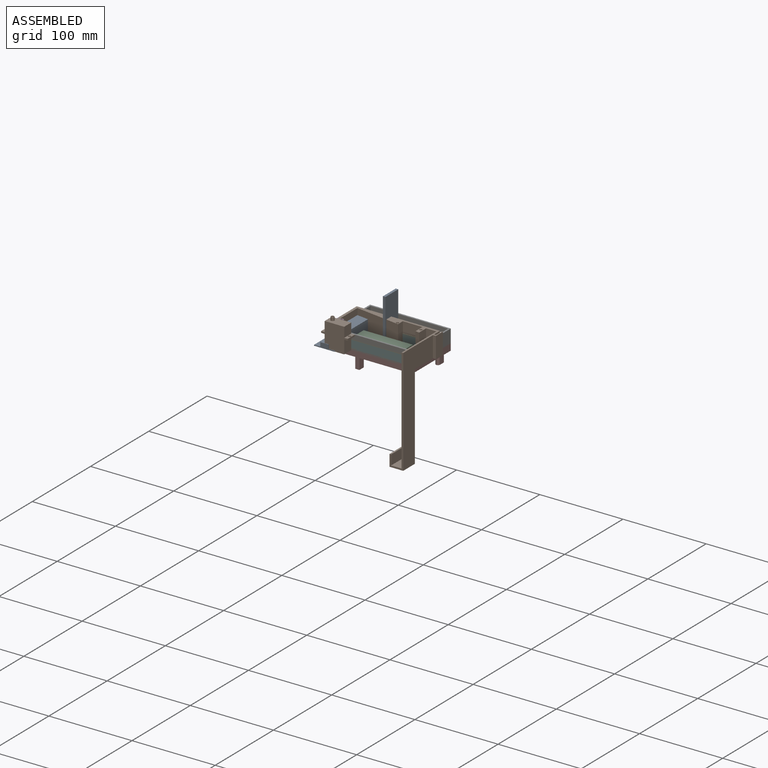
[diagram: assembled view]
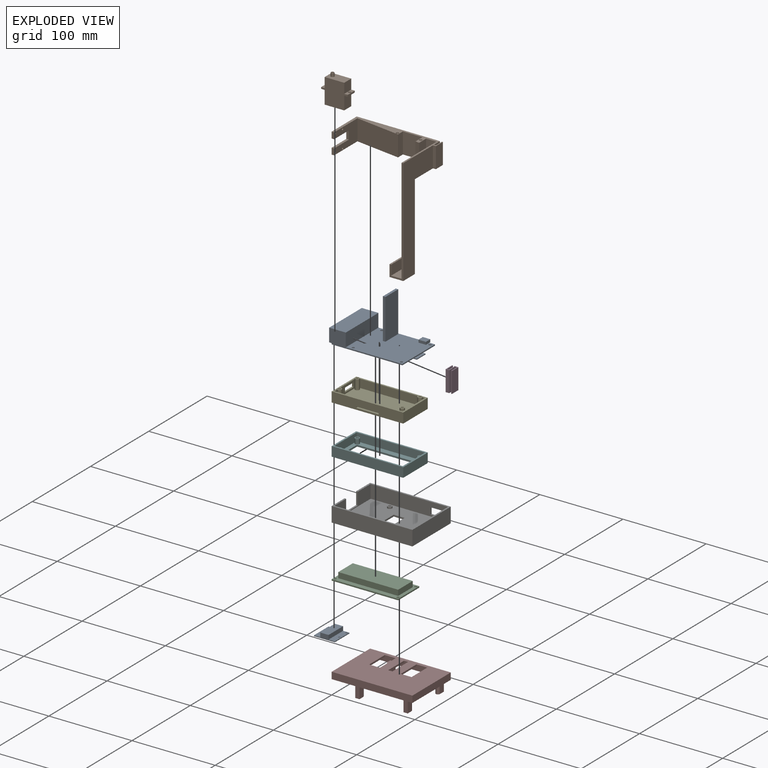
[diagram: exploded view]
GUIDED TOUR — FREECAD ASSEMBLY "housing"

This assembly has 10 components, labeled P0..P9 below (a component is one placed body or linked part; the same part can appear more than once), held together by 0 modeled joints plus 41 derived contact edges. A joint is a constraint between two components; its type names the relative motion it leaves free:
  CONTACT — a derived adjacency edge — the two components touch in the source model (clearance under 2% of the assembly's diagonal); it is measured from the geometry, not a modeled constraint.
Axis/direction vectors are unit vectors and 'through' points are millimeter coordinates, both in the assembly's world frame.

MATES
  1. CONTACT "contact_0_1": P0 <-> P1, contact direction (0.000, 0.000, 1.000) through (4.00, 13.00, 1.27) mm (derived from contact, not a modeled constraint)
  2. CONTACT "contact_0_3": P0 <-> P3, contact direction (0.000, 0.000, 1.000) through (8.51, 10.83, 0.00) mm (derived from contact, not a modeled constraint)
  3. CONTACT "contact_0_4": P0 <-> P4, contact direction (0.000, 0.000, 1.000) through (8.45, 8.73, 0.00) mm (derived from contact, not a modeled constraint)
  4. CONTACT "contact_0_5": P0 <-> P5, contact direction (0.000, 0.000, 1.000) through (8.28, 9.27, 0.00) mm (derived from contact, not a modeled constraint)
  5. CONTACT "contact_0_9": P0 <-> P9, contact direction (0.000, 0.000, 1.000) through (8.24, -3.73, 0.00) mm (derived from contact, not a modeled constraint)
  6. CONTACT "contact_1_2": P1 <-> P2, contact direction (0.000, 0.000, -1.000) through (0.00, 0.00, 0.00) mm (derived from contact, not a modeled constraint)
  7. CONTACT "contact_1_3": P1 <-> P3, contact direction (-0.807, -0.451, 0.381) through (0.00, 0.00, 0.00) mm (derived from contact, not a modeled constraint)
  8. CONTACT "contact_1_4": P1 <-> P4, contact direction (0.807, 0.451, -0.381) through (0.00, 0.00, 0.00) mm (derived from contact, not a modeled constraint)
  9. CONTACT "contact_1_5": P1 <-> P5, contact direction (0.807, 0.451, -0.381) through (0.00, 0.00, 0.00) mm (derived from contact, not a modeled constraint)
  10. CONTACT "contact_1_6": P1 <-> P6, contact direction (0.807, 0.451, -0.381) through (0.00, 0.00, 0.00) mm (derived from contact, not a modeled constraint)
  11. CONTACT "contact_1_7": P1 <-> P7, contact direction (0.807, 0.451, -0.381) through (0.00, 0.00, 0.00) mm (derived from contact, not a modeled constraint)
  12. CONTACT "contact_1_8": P1 <-> P8, contact direction (0.000, 0.000, -1.000) through (0.00, 0.00, 0.00) mm (derived from contact, not a modeled constraint)
  13. CONTACT "contact_1_9": P1 <-> P9, contact direction (-0.807, -0.451, 0.381) through (0.00, 0.00, 0.00) mm (derived from contact, not a modeled constraint)
  14. CONTACT "contact_2_3": P2 <-> P3, contact direction (-1.000, 0.000, 0.000) through (0.00, 0.00, 0.00) mm (derived from contact, not a modeled constraint)
  15. CONTACT "contact_2_4": P2 <-> P4, contact direction (0.180, 0.427, 0.886) through (0.00, 0.00, 0.00) mm (derived from contact, not a modeled constraint)
  16. CONTACT "contact_2_5": P2 <-> P5, contact direction (0.180, 0.427, 0.886) through (0.00, 0.00, 0.00) mm (derived from contact, not a modeled constraint)
  17. CONTACT "contact_2_6": P2 <-> P6, contact direction (0.000, 0.000, 1.000) through (0.00, 0.00, 0.00) mm (derived from contact, not a modeled constraint)
  18. CONTACT "contact_2_7": P2 <-> P7, contact direction (0.000, 0.000, -1.000) through (0.00, 0.00, 0.00) mm (derived from contact, not a modeled constraint)
  19. CONTACT "contact_2_8": P2 <-> P8, contact direction (0.000, 0.000, 1.000) through (0.00, 0.00, 0.00) mm (derived from contact, not a modeled constraint)
  20. CONTACT "contact_2_9": P2 <-> P9, contact direction (-0.807, -0.451, 0.381) through (0.00, 0.00, 0.00) mm (derived from contact, not a modeled constraint)
  21. CONTACT "contact_3_4": P3 <-> P4, contact direction (1.000, 0.000, 0.000) through (0.00, 0.00, 0.00) mm (derived from contact, not a modeled constraint)
  22. CONTACT "contact_3_5": P3 <-> P5, contact direction (1.000, 0.000, 0.000) through (0.00, 0.00, 0.00) mm (derived from contact, not a modeled constraint)
  23. CONTACT "contact_3_6": P3 <-> P6, contact direction (0.807, 0.451, -0.381) through (0.00, 0.00, 0.00) mm (derived from contact, not a modeled constraint)
  24. CONTACT "contact_3_7": P3 <-> P7, contact direction (0.000, 0.000, -1.000) through (0.00, 0.00, 0.00) mm (derived from contact, not a modeled constraint)
  25. CONTACT "contact_3_8": P3 <-> P8, contact direction (0.807, 0.451, -0.381) through (0.00, 0.00, 0.00) mm (derived from contact, not a modeled constraint)
  26. CONTACT "contact_3_9": P3 <-> P9, contact direction (0.000, -1.000, 0.000) through (0.00, 0.00, 0.00) mm (derived from contact, not a modeled constraint)
  27. CONTACT "contact_4_5": P4 <-> P5, contact direction (0.000, 0.000, -1.000) through (0.00, 42.20, 0.00) mm (derived from contact, not a modeled constraint)
  28. CONTACT "contact_4_6": P4 <-> P6, contact direction (0.000, 0.000, -1.000) through (0.00, 0.00, 0.00) mm (derived from contact, not a modeled constraint)
  29. CONTACT "contact_4_7": P4 <-> P7, contact direction (0.000, 0.000, -1.000) through (0.00, 0.00, 0.00) mm (derived from contact, not a modeled constraint)
  30. CONTACT "contact_4_8": P4 <-> P8, contact direction (0.000, 0.000, -1.000) through (0.00, 0.00, 0.00) mm (derived from contact, not a modeled constraint)
  31. CONTACT "contact_4_9": P4 <-> P9, contact direction (0.000, 0.000, 1.000) through (0.00, 0.00, 0.00) mm (derived from contact, not a modeled constraint)
  32. CONTACT "contact_5_6": P5 <-> P6, contact direction (0.807, 0.451, -0.381) through (0.00, 0.00, 0.00) mm (derived from contact, not a modeled constraint)
  33. CONTACT "contact_5_7": P5 <-> P7, contact direction (0.000, 0.000, -1.000) through (0.00, 0.00, 0.00) mm (derived from contact, not a modeled constraint)
  34. CONTACT "contact_5_8": P5 <-> P8, contact direction (0.000, 0.000, -1.000) through (0.00, 0.00, 0.00) mm (derived from contact, not a modeled constraint)
  35. CONTACT "contact_5_9": P5 <-> P9, contact direction (-1.000, 0.000, 0.000) through (0.00, 0.00, 0.00) mm (derived from contact, not a modeled constraint)
  36. CONTACT "contact_6_7": P6 <-> P7, contact direction (0.000, 0.000, -1.000) through (0.00, 0.00, 0.00) mm (derived from contact, not a modeled constraint)
  37. CONTACT "contact_6_8": P6 <-> P8, contact direction (0.000, 0.000, -1.000) through (0.00, 0.00, 0.00) mm (derived from contact, not a modeled constraint)
  38. CONTACT "contact_6_9": P6 <-> P9, contact direction (0.000, 0.000, 1.000) through (0.00, 0.00, 0.00) mm (derived from contact, not a modeled constraint)
  39. CONTACT "contact_7_8": P7 <-> P8, contact direction (0.000, 0.000, 1.000) through (0.00, 0.00, 0.00) mm (derived from contact, not a modeled constraint)
  40. CONTACT "contact_7_9": P7 <-> P9, contact direction (0.000, 0.000, 1.000) through (0.00, 0.00, 0.00) mm (derived from contact, not a modeled constraint)
  41. CONTACT "contact_8_9": P8 <-> P9, contact direction (-0.807, -0.451, 0.381) through (0.00, 0.00, 0.00) mm (derived from contact, not a modeled constraint)

ASSEMBLY ORDER
  1. P8 — the base component [order heuristic]
  2. P4 — core [order heuristic]
  3. P5 — core [order heuristic]
  4. P6 [order verified]
  5. P2 — core [order heuristic]
  6. P0 [order verified]
  7. P1 [order verified]
  8. P3 [order verified]
  9. P7 [order verified]
  10. P9 [order verified]
(P1, P3, P6, P7 verified with a relaxed clearance tolerance: the source model stores slight part interference there.)
Order-tag legend:
  [order verified] — this step's position reverses a verified removal order: the component was checked to insert without passing through the ones already placed.
  [order heuristic] — the first 4 components form the assembly's core: parts whose collision-free extraction could not be verified, listed in mate-graph order.

Of the 10 components, 10 carry a construction recipe — the FreeCAD feature program (sketches with constraints, then the solid features that consume them) that regenerates the part from scratch, quoted from this document or from the linked companion document it references; the rest are supplied as boundary geometry only. The tour below walks the components in assembly order: each is shown spotlighted twice — in the assembled view, then in the exploded view, where a leader line traces a displaced component back to its assembled socket (components that stay in place when exploded have no leader line; saturated green if recipe-attached, orange if geometry-only; every other component desaturated gray) — followed by its recipe or geometry summary and the mates that hold it.
NOTE — this tour is split across 2 documents so each fits a 32k-token context. This is document 1: the component sections continue in the remaining 1 document, each repeating the header above.
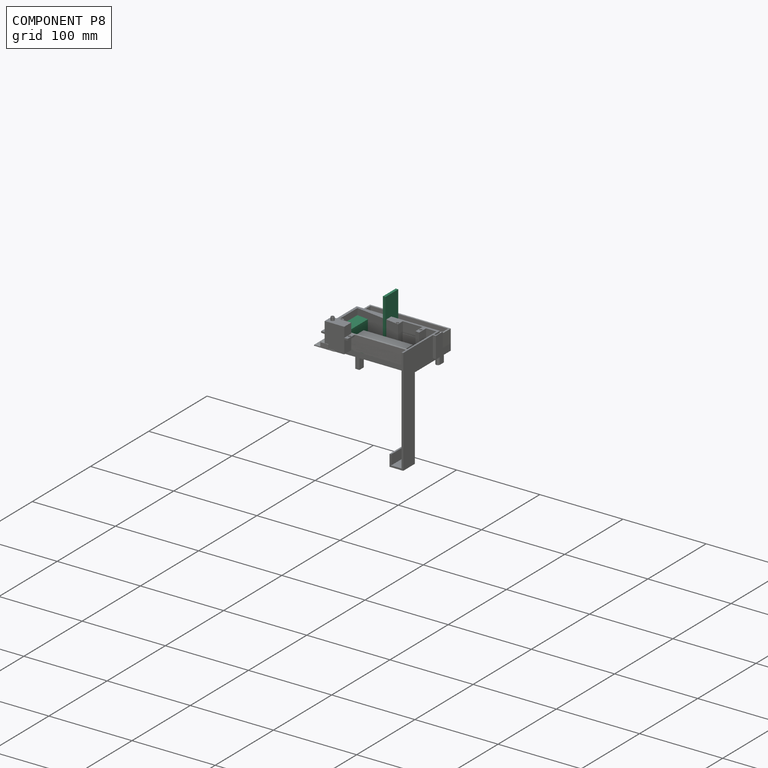
[diagram: component P8 — assembled]
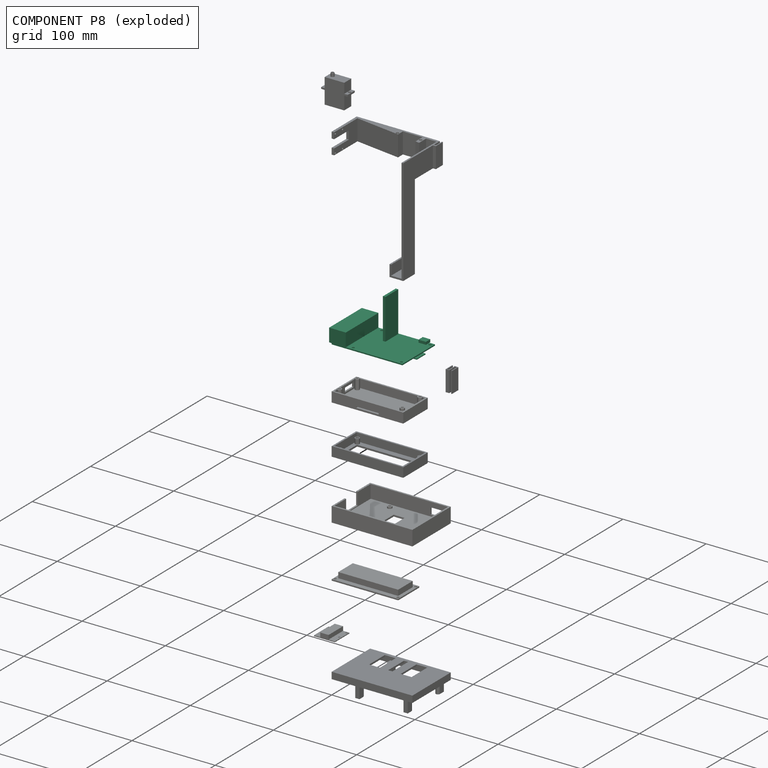
[diagram: component P8 — exploded]
COMPONENT P8 — recipe-attached ("Raspi", modeled in this document).
Held by: resting contact with P1 (derived edge); resting contact with P2 (derived edge); resting contact with P3 (derived edge); resting contact with P4 (derived edge); resting contact with P5 (derived edge); resting contact with P6 (derived edge); resting contact with P7 (derived edge); resting contact with P9 (derived edge).
Construction recipe (the document's own serialized feature program — sketch geometry with constraints, then the solid features built on it; lengths are millimeters unless a unit is written):

FEATURE [Sketcher::SketchObject] Sketch005  label="RPI_BaseSketch"
  FullyConstrained = true
  MapMode = 5
  Support = -> [XY_Plane003]
  expr: Constraints[10] = <<RaspiProps>>.Width
  expr: Constraints[9] = <<RaspiProps>>.Height
  expr: Constraints[30] = <<RaspiProps>>.Width - <<RaspiProps>>.HoleDistanceTop - <<RaspiProps>>.HoleDistanceBottom
  expr: Constraints[31] = <<RaspiProps>>.Height - <<RaspiProps>>.HoleDistanceSide * 2
  expr: Constraints[32] = <<RaspiProps>>.HoleDistanceTop
  expr: Constraints[33] = <<RaspiProps>>.HoleRadius
  sketch-geometry (14):
    g0: LineSegment StartX=0 StartY=0 StartZ=0 EndX=85 EndY=0 EndZ=0
    g1: LineSegment StartX=85 StartY=0 StartZ=0 EndX=85 EndY=56 EndZ=0
    g2: LineSegment StartX=85 StartY=56 StartZ=0 EndX=0 EndY=56 EndZ=0
    g3: LineSegment StartX=0 StartY=56 StartZ=0 EndX=0 EndY=0 EndZ=0
    g4: Circle CenterX=23.5 CenterY=52.5 CenterZ=0 NormalX=0 NormalY=0 NormalZ=1 AngleXU=0 Radius=1.5
    g5: Circle CenterX=23.5 CenterY=3.5 CenterZ=0 NormalX=0 NormalY=0 NormalZ=1 AngleXU=0 Radius=1.5
    g6: Circle CenterX=81.5 CenterY=52.5 CenterZ=0 NormalX=0 NormalY=0 NormalZ=1 AngleXU=0 Radius=1.5
    g7: Circle CenterX=81.5 CenterY=3.5 CenterZ=0 NormalX=0 NormalY=0 NormalZ=1 AngleXU=0 Radius=1.5
    g8: LineSegment StartX=0 StartY=28 StartZ=0 EndX=85 EndY=28 EndZ=0
    g9: LineSegment StartX=81.5 StartY=52.5 StartZ=0 EndX=85 EndY=52.5 EndZ=0
    g10: LineSegment StartX=81.5 StartY=52.5 StartZ=0 EndX=81.5 EndY=56 EndZ=0
    g11: LineSegment StartX=23.5 StartY=52.5 StartZ=0 EndX=23.5 EndY=56 EndZ=0
    g12: LineSegment StartX=81.5 StartY=52.5 StartZ=0 EndX=81.5 EndY=3.5 EndZ=0
    g13: LineSegment StartX=81.5 StartY=52.5 StartZ=0 EndX=23.5 EndY=52.5 EndZ=0
  constraints (37):
    c: Coincident(g0,g1)
    c: Coincident(g1,g2)
    c: Coincident(g2,g3)
    c: Coincident(g3,g0)
    c: Horizontal(g0)
    c: Horizontal(g2)
    c: Vertical(g1)
    c: Vertical(g3)
    c: Coincident(g0,g-1)
    c: Distance(g1) = 56
    c: Distance(g0) = 85
    c: PointOnObject(g8,g3)
    c: PointOnObject(g8,g1)
    c: Symmetric(g2,g0,g8)
    c: Symmetric(g6,g7,g8)
    c: Symmetric(g4,g5,g8)
    c: Coincident(g9,g6)
    c: PointOnObject(g9,g1)
    c: Horizontal(g9)
    c: Coincident(g10,g6)
    c: PointOnObject(g10,g2)
    c: Vertical(g10)
    c: Coincident(g11,g4)
    c: PointOnObject(g11,g2)
    c: Vertical(g11)
    c: Coincident(g12,g6)
    c: Coincident(g12,g7)
    c: Coincident(g13,g6)
    c: Coincident(g13,g4)
    c: Horizontal(g13)
    c: Distance(g13) = 58
    c: Distance(g12) = 49
    c: Distance(g9) = 3.5
    c: Radius(g4) = 1.5
    c: Equal(g4,g6)
    c: Equal(g4,g7)
    c: Equal(g4,g5)
FEATURE [PartDesign::Pad] Pad003  label="RPI_Base"
  Direction = (1,1,1)
  Length = 1.4
  Length2 = 100
  Profile = -> Sketch005
  Type = 0
FEATURE [PartDesign::CoordinateSystem] RPI_TopRightScrewHole  label="RPI_TopRightScrewHoleBottom"
  AttacherType = Attacher::AttachEngine3D
  MapMode = 11
  Placement = pos=(81.5,52.5,0) rot=(0,0,1;1.5708rad)
  Support = -> [Sketch005]
FEATURE [Sketcher::SketchObject] Sketch009  label="RPI_PortsSketch"
  AttachmentOffset = pos=(0,0,1.4) rot=(0,0,1;0rad)
  FullyConstrained = true
  MapMode = 5
  Placement = pos=(0,0,1.4) rot=(0,0,1;0rad)
  Support = -> [XY_Plane003]
  expr: .AttachmentOffset.Base.z = <<RPI_Base>>.Length
  expr: Constraints[11] = <<RaspiProps>>.PortsMargin
  expr: Constraints[10] = <<RaspiProps>>.Height
  sketch-geometry (4):
    g0: LineSegment StartX=-3 StartY=56 StartZ=0 EndX=17 EndY=56 EndZ=0
    g1: LineSegment StartX=17 StartY=56 StartZ=0 EndX=17 EndY=0 EndZ=0
    g2: LineSegment StartX=17 StartY=0 StartZ=0 EndX=-3 EndY=0 EndZ=0
    g3: LineSegment StartX=-3 StartY=0 StartZ=0 EndX=-3 EndY=56 EndZ=0
  constraints (12):
    c: Coincident(g0,g1)
    c: Coincident(g1,g2)
    c: Coincident(g2,g3)
    c: Coincident(g3,g0)
    c: Horizontal(g0)
    c: Horizontal(g2)
    c: Vertical(g1)
    c: Vertical(g3)
    c: PointOnObject(g1,g-1)
    c: Distance(g0) = 20
    c: Distance(g1) = 56
    c: DistanceX(g2,g-1) = 3
FEATURE [PartDesign::Pad] Pad007  label="RPI_Ports"
  BaseFeature = -> Pad003
  Direction = (1,1,1)
  Length = 16
  Length2 = 100
  Profile = -> Sketch009
  Type = 0
FEATURE [Sketcher::SketchObject] Sketch010  label="RPI_SdcardSketch"
  FullyConstrained = true
  MapMode = 5
  Support = -> [XY_Plane003]
  expr: Constraints[14] = <<RaspiProps>>.SdcardMargin
  expr: Constraints[11] = <<RaspiProps>>.Width
  expr: Constraints[10] = <<RaspiProps>>.Height
  sketch-geometry (7):
    g0: LineSegment StartX=58 StartY=35.5 StartZ=0 EndX=88 EndY=35.5 EndZ=0
    g1: LineSegment StartX=88 StartY=35.5 StartZ=0 EndX=88 EndY=20.5 EndZ=0
    g2: LineSegment StartX=88 StartY=20.5 StartZ=0 EndX=58 EndY=20.5 EndZ=0
    g3: LineSegment StartX=58 StartY=20.5 StartZ=0 EndX=58 EndY=35.5 EndZ=0
    g4: LineSegment StartX=85 StartY=0 StartZ=0 EndX=85 EndY=56 EndZ=0
    g5: LineSegment StartX=58 StartY=35.5 StartZ=0 EndX=85 EndY=56 EndZ=0
    g6: LineSegment StartX=58 StartY=20.5 StartZ=0 EndX=85 EndY=0 EndZ=0
  constraints (20):
    c: Coincident(g0,g1)
    c: Coincident(g1,g2)
    c: Coincident(g2,g3)
    c: Coincident(g3,g0)
    c: Horizontal(g0)
    c: Horizontal(g2)
    c: Vertical(g1)
    c: Vertical(g3)
    c: PointOnObject(g4,g-1)
    c: Vertical(g4)
    c: Distance(g4) = 56
    c: DistanceX(g-1,g4) = 85
    c: Distance(g1) = 15
    c: Distance(g0) = 30
    c: DistanceX(g4,g1) = 3
    c: Coincident(g5,g0)
    c: Coincident(g5,g4)
    c: Coincident(g6,g2)
    c: Coincident(g6,g4)
    c: Equal(g5,g6)
FEATURE [PartDesign::Pad] Pad008  label="RPI_Sdcard"
  BaseFeature = -> Pad007
  Direction = (1,1,1)
  Length = 1
  Length2 = 100
  Profile = -> Sketch010
  Reversed = true
  Type = 0
FEATURE [Sketcher::SketchObject] Sketch011  label="RPI_UsbcSketch"
  AttachmentOffset = pos=(0,0,1.4) rot=(0,0,1;0rad)
  FullyConstrained = true
  MapMode = 5
  Placement = pos=(0,0,1.4) rot=(0,0,1;0rad)
  Support = -> [XY_Plane003]
  expr: .AttachmentOffset.Base.z = <<RPI_Base>>.Length
  expr: Constraints[11] = <<RaspiProps>>.Height
  expr: Constraints[10] = <<RaspiProps>>.Width
  sketch-geometry (5):
    g0: LineSegment StartX=69.3 StartY=57.5 StartZ=0 EndX=78.3 EndY=57.5 EndZ=0
    g1: LineSegment StartX=78.3 StartY=57.5 StartZ=0 EndX=78.3 EndY=50 EndZ=0
    g2: LineSegment StartX=78.3 StartY=50 StartZ=0 EndX=69.3 EndY=50 EndZ=0
    g3: LineSegment StartX=69.3 StartY=50 StartZ=0 EndX=69.3 EndY=57.5 EndZ=0
    g4: LineSegment StartX=0 StartY=56 StartZ=0 EndX=85 EndY=56 EndZ=0
  constraints (16):
    c: Coincident(g0,g1)
    c: Coincident(g1,g2)
    c: Coincident(g2,g3)
    c: Coincident(g3,g0)
    c: Horizontal(g0)
    c: Horizontal(g2)
    c: Vertical(g1)
    c: Vertical(g3)
    c: PointOnObject(g4,g-2)
    c: Horizontal(g4)
    c: Distance(g4) = 85
    c: DistanceY(g-1,g4) = 56
    c: Distance(g0) = 9
    c: DistanceX(g1,g4) = 6.7
    c: Distance(g3) = 7.5
    c: DistanceY(g4,g0) = 1.5
FEATURE [PartDesign::Pad] Pad009  label="RPI_Usbc"
  BaseFeature = -> Pad008
  Direction = (1,1,1)
  Length = 3.2
  Length2 = 100
  Profile = -> Sketch011
  Type = 0
FEATURE [Sketcher::SketchObject] Sketch013  label="RPI_CamCableSketch"
  FullyConstrained = true
  MapMode = 5
  Support = -> [XY_Plane003]
  expr: Constraints[26] = <<RaspiProps>>.CamCableOffsetY
  expr: Constraints[25] = <<RaspiProps>>.CamCableOffsetX
  expr: Constraints[10] = <<RaspiProps>>.Height
  expr: Constraints[9] = <<RaspiProps>>.Width
  sketch-geometry (10):
    g0: LineSegment StartX=0 StartY=0 StartZ=0 EndX=85 EndY=0 EndZ=0
    g1: LineSegment StartX=85 StartY=0 StartZ=0 EndX=85 EndY=56 EndZ=0
    g2: LineSegment StartX=85 StartY=56 StartZ=0 EndX=0 EndY=56 EndZ=0
    g3: LineSegment StartX=0 StartY=56 StartZ=0 EndX=0 EndY=0 EndZ=0
    g4: LineSegment StartX=41.5 StartY=55 StartZ=0 EndX=41.5 EndY=33 EndZ=0
    g5: LineSegment StartX=41.5 StartY=33 StartZ=0 EndX=38.5 EndY=33 EndZ=0
    g6: LineSegment StartX=38.5 StartY=33 StartZ=0 EndX=38.5 EndY=55 EndZ=0
    g7: GeomPoint X=40 Y=55 Z=0
    g8: LineSegment StartX=38.5 StartY=55 StartZ=0 EndX=40 EndY=55 EndZ=0
    g9: LineSegment StartX=40 StartY=55 StartZ=0 EndX=41.5 EndY=55 EndZ=0
  constraints (27):
    c: Coincident(g0,g1)
    c: Coincident(g1,g2)
    c: Coincident(g2,g3)
    c: Coincident(g3,g0)
    c: Horizontal(g0)
    c: Horizontal(g2)
    c: Vertical(g1)
    c: Vertical(g3)
    c: Coincident(g0,g-1)
    c: Distance(g2) = 85
    c: Distance(g1) = 56
    c: Coincident(g4,g5)
    c: Coincident(g5,g6)
    c: Horizontal(g5)
    c: Vertical(g4)
    c: Vertical(g6)
    c: Distance(g6) = 22
    c: Distance(g5) = 3
    c: Coincident(g8,g6)
    c: Coincident(g8,g7)
    c: Coincident(g9,g8)
    c: Coincident(g9,g4)
    c: Horizontal(g9)
    c: Horizontal(g8)
    c: Equal(g8,g9)
    c: DistanceX(g8,g1) = 45
    c: DistanceY(g6,g2) = 1
FEATURE [PartDesign::Pad] Pad010  label="RPI_CamCable"
  BaseFeature = -> Pad009
  Direction = (1,1,1)
  Length = 50
  Length2 = 100
  Profile = -> Sketch013
  Type = 0
FEATURE [PartDesign::CoordinateSystem] RPI_TopRightScrewHoleTop
  AttacherType = Attacher::AttachEngine3D
  AttachmentOffset = pos=(0,0,1.4) rot=(0,0,1;0rad)
  MapMode = 11
  Placement = pos=(81.5,52.5,1.4) rot=(0,0,1;1.5708rad)
  Support = -> [Sketch005]
  expr: .AttachmentOffset.Base.z = <<RPI_Base>>.Length
FEATURE [PartDesign::Body] Raspi
  Group = -> [Sketch005,Pad003,RPI_TopRightScrewHole,Sketch009,Pad007,Sketch010,Pad008,Sketch011,Pad009,Sketch013,Pad010,RPI_TopRightScrewHoleTop]
  Origin = -> Origin003
  Tip = -> Pad010
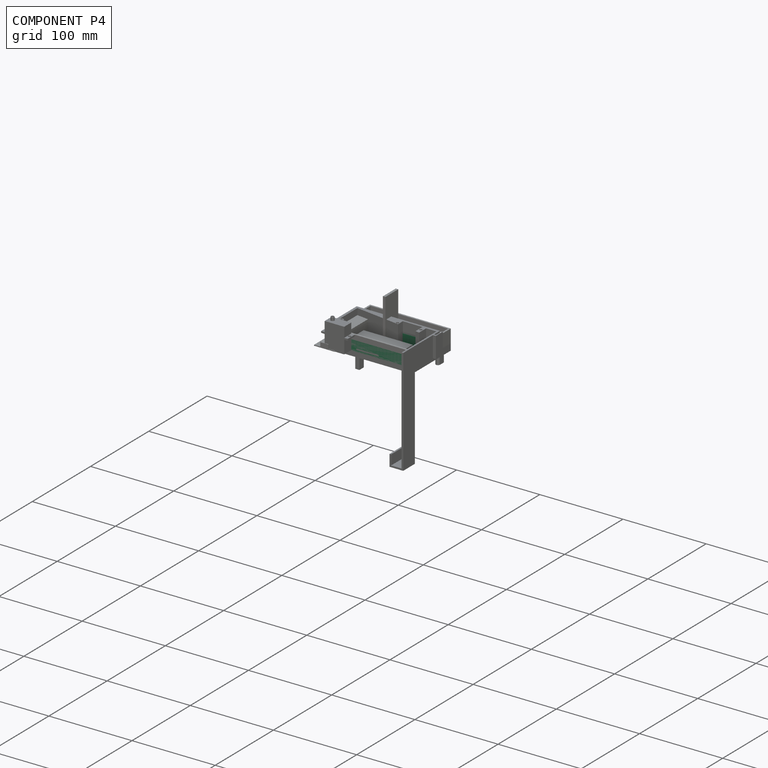
[diagram: component P4 — assembled]
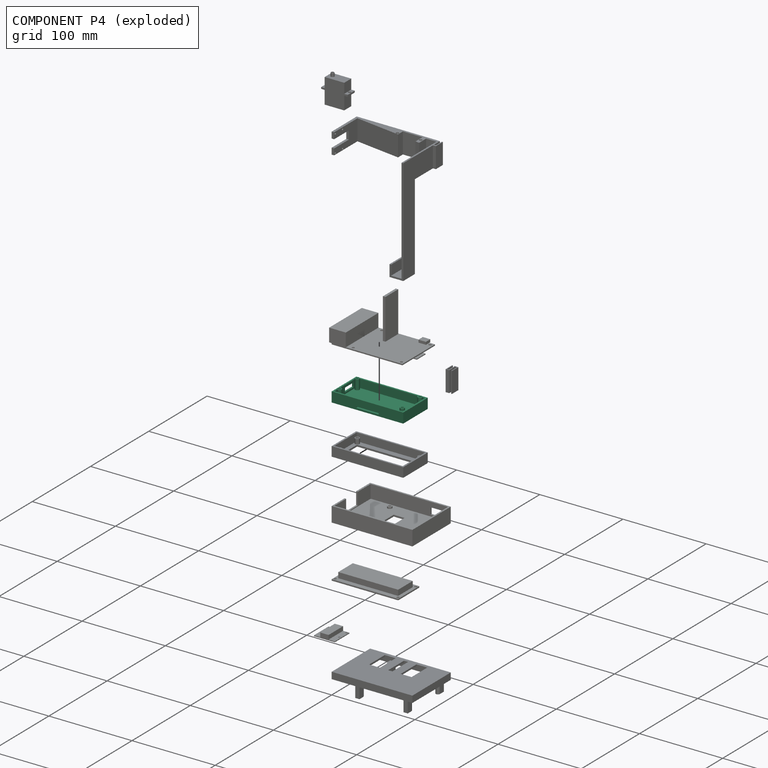
[diagram: component P4 — exploded]
COMPONENT P4 — recipe-attached ("DisplayHousingBottom", modeled in this document).
Held by: resting contact with P0 (derived edge); resting contact with P1 (derived edge); resting contact with P2 (derived edge); resting contact with P3 (derived edge); resting contact with P5 (derived edge); resting contact with P6 (derived edge); resting contact with P7 (derived edge); resting contact with P8 (derived edge); resting contact with P9 (derived edge).
Construction recipe (the document's own serialized feature program — sketch geometry with constraints, then the solid features built on it; lengths are millimeters unless a unit is written):

FEATURE [PartDesign::CoordinateSystem] LCS_0003
  AttacherType = Attacher::AttachEngine3D
  MapMode = 2
  Support = -> [X_Axis007]
FEATURE [PartDesign::AdditiveBox] Box006  label="DHB_Base"
  AttacherType = Attacher::AttachEngine3D
  Height = 12
  Length = 86
  Width = 42.2
  expr: Width = <<DisplayProps>>.BoardY + 6mm
  expr: Length = <<DisplayProps>>.BoardX + 6mm
FEATURE [PartDesign::SubtractiveBox] Box007  label="DHB_BaseCutout"
  AttacherType = Attacher::AttachEngine3D
  AttachmentOffset = pos=(2,2,2) rot=(0,0,1;0rad)
  BaseFeature = -> Box006
  Height = 10
  Length = 82
  MapMode = 5
  Placement = pos=(2,2,2) rot=(0,0,1;0rad)
  Support = -> [XY_Plane007]
  Width = 38.2
  expr: Width = <<DHB_Base>>.Width - 4mm
  expr: Length = <<DHB_Base>>.Length - 4mm
FEATURE [Sketcher::SketchObject] Sketch020  label="DHB_HoleSpacersSketch"
  FullyConstrained = true
  MapMode = 5
  Support = -> [XY_Plane007]
  expr: Constraints[11] = 3mm + <<DisplayProps>>.HoleOffsetY
  expr: Constraints[10] = 3mm + <<DisplayProps>>.HoleOffsetX
  expr: Constraints[9] = <<DisplayProps>>.HoleDistanceY
  expr: Constraints[16] = <<DisplayProps>>.HoleRadius + 1.2mm
  expr: Constraints[8] = <<DisplayProps>>.HoleDistanceX
  sketch-geometry (8):
    g0: LineSegment StartX=5.25 StartY=36.35 StartZ=0 EndX=80.75 EndY=36.35 EndZ=0
    g1: LineSegment StartX=80.75 StartY=36.35 StartZ=0 EndX=80.75 EndY=5.85 EndZ=0
    g2: LineSegment StartX=80.75 StartY=5.85 StartZ=0 EndX=5.25 EndY=5.85 EndZ=0
    g3: LineSegment StartX=5.25 StartY=5.85 StartZ=0 EndX=5.25 EndY=36.35 EndZ=0
    g4: Circle CenterX=5.25 CenterY=36.35 CenterZ=0 NormalX=0 NormalY=0 NormalZ=1 AngleXU=0 Radius=2.7
    g5: Circle CenterX=80.75 CenterY=36.35 CenterZ=0 NormalX=0 NormalY=0 NormalZ=1 AngleXU=0 Radius=2.7
    g6: Circle CenterX=80.75 CenterY=5.85 CenterZ=0 NormalX=0 NormalY=0 NormalZ=1 AngleXU=0 Radius=2.7
    g7: Circle CenterX=5.25 CenterY=5.85 CenterZ=0 NormalX=0 NormalY=0 NormalZ=1 AngleXU=0 Radius=2.7
  constraints (20):
    c: Coincident(g0,g1)
    c: Coincident(g1,g2)
    c: Coincident(g2,g3)
    c: Coincident(g3,g0)
    c: Horizontal(g0)
    c: Horizontal(g2)
    c: Vertical(g1)
    c: Vertical(g3)
    c: Distance(g0) = 75.5
    c: Distance(g1) = 30.5
    c: DistanceX(g-1,g2) = 5.25
    c: DistanceY(g-1,g2) = 5.85
    c: Coincident(g4,g0)
    c: Coincident(g5,g0)
    c: Coincident(g6,g1)
    c: Coincident(g7,g2)
    c: Radius(g4) = 2.7
    c: Equal(g4,g5)
    c: Equal(g4,g6)
    c: Equal(g4,g7)
FEATURE [PartDesign::Pad] Pad016  label="HoleSpacers"
  BaseFeature = -> Box007
  Direction = (1,1,1)
  Length = 14
  Length2 = 100
  Placement = pos=(2,2,2) rot=(0,0,1;0rad)
  Profile = -> Sketch020
  Type = 0
FEATURE [Sketcher::SketchObject] Sketch021  label="DHB_HolesSketch"
  AttachmentOffset = pos=(0,0,2) rot=(0,0,1;0rad)
  FullyConstrained = true
  MapMode = 5
  Placement = pos=(0,0,2) rot=(0,0,1;0rad)
  Support = -> [XY_Plane007]
  expr: Constraints[11] = 3mm + <<DisplayProps>>.HoleOffsetY
  expr: Constraints[10] = 3mm + <<DisplayProps>>.HoleOffsetX
  expr: Constraints[9] = <<DisplayProps>>.HoleDistanceY
  expr: Constraints[16] = <<DisplayProps>>.HoleRadius
  expr: Constraints[8] = <<DisplayProps>>.HoleDistanceX
  sketch-geometry (8):
    g0: LineSegment StartX=5.25 StartY=36.35 StartZ=0 EndX=80.75 EndY=36.35 EndZ=0
    g1: LineSegment StartX=80.75 StartY=36.35 StartZ=0 EndX=80.75 EndY=5.85 EndZ=0
    g2: LineSegment StartX=80.75 StartY=5.85 StartZ=0 EndX=5.25 EndY=5.85 EndZ=0
    g3: LineSegment StartX=5.25 StartY=5.85 StartZ=0 EndX=5.25 EndY=36.35 EndZ=0
    g4: Circle CenterX=5.25 CenterY=36.35 CenterZ=0 NormalX=0 NormalY=0 NormalZ=1 AngleXU=0 Radius=1.5
    g5: Circle CenterX=80.75 CenterY=36.35 CenterZ=0 NormalX=0 NormalY=0 NormalZ=1 AngleXU=0 Radius=1.5
    g6: Circle CenterX=80.75 CenterY=5.85 CenterZ=0 NormalX=0 NormalY=0 NormalZ=1 AngleXU=0 Radius=1.5
    g7: Circle CenterX=5.25 CenterY=5.85 CenterZ=0 NormalX=0 NormalY=0 NormalZ=1 AngleXU=0 Radius=1.5
  constraints (20):
    c: Coincident(g0,g1)
    c: Coincident(g1,g2)
    c: Coincident(g2,g3)
    c: Coincident(g3,g0)
    c: Horizontal(g0)
    c: Horizontal(g2)
    c: Vertical(g1)
    c: Vertical(g3)
    c: Distance(g0) = 75.5
    c: Distance(g1) = 30.5
    c: DistanceX(g-1,g2) = 5.25
    c: DistanceY(g-1,g2) = 5.85
    c: Coincident(g4,g0)
    c: Coincident(g5,g0)
    c: Coincident(g6,g1)
    c: Coincident(g7,g2)
    c: Radius(g4) = 1.5
    c: Equal(g4,g5)
    c: Equal(g4,g6)
    c: Equal(g4,g7)
FEATURE [PartDesign::Pocket] Pocket003  label="DHB_Holes"
  BaseFeature = -> Pad016
  Length = 14
  Length2 = 100
  Placement = pos=(2,2,2) rot=(0,0,1;0rad)
  Profile = -> Sketch021
  Reversed = true
  Type = 0
FEATURE [PartDesign::SubtractiveBox] Box008  label="DHB_CablesCutout"
  AttacherType = Attacher::AttachEngine3D
  AttachmentOffset = pos=(0,20,4) rot=(0,0,1;0rad)
  BaseFeature = -> Pocket003
  Height = 5
  Length = 2
  MapMode = 5
  Placement = pos=(0,20,4) rot=(0,0,1;0rad)
  Support = -> [XY_Plane007]
  Width = 15
FEATURE [PartDesign::SubtractiveBox] Box009  label="DHB_ClipCutout"
  AttacherType = Attacher::AttachEngine3D
  AttachmentOffset = pos=(29.5,0,2) rot=(0,0,1;0rad)
  BaseFeature = -> Box008
  Height = 1.5
  Length = 27
  MapMode = 5
  Placement = pos=(29.5,0,2) rot=(0,0,1;0rad)
  Support = -> [XY_Plane007]
  Width = 2
  expr: .AttachmentOffset.Base.x = (<<DisplayProps>>.BoardX + 6mm) / 2 - Length / 2
FEATURE [PartDesign::CoordinateSystem] DHB_Clip
  AttacherType = Attacher::AttachEngine3D
  MapMode = 45
  Placement = pos=(43,0,0) rot=(0.57735,0.57735,0.57735;2.0944rad)
  Support = -> [Box009]
FEATURE [PartDesign::CoordinateSystem] DHB_TopRightScrewHole
  AttacherType = Attacher::AttachEngine3D
  MapMode = 11
  Placement = pos=(80.75,36.35,14) rot=(0.707107,-0.707107,0;3.14159rad)
  Support = -> [Box009]
FEATURE [PartDesign::Body] DisplayHousingBottom
  Group = -> [LCS_0003,Box006,Box007,Sketch020,Pad016,Sketch021,Pocket003,Box008,Box009,DHB_Clip,DHB_TopRightScrewHole]
  Origin = -> Origin007
  Tip = -> Box009
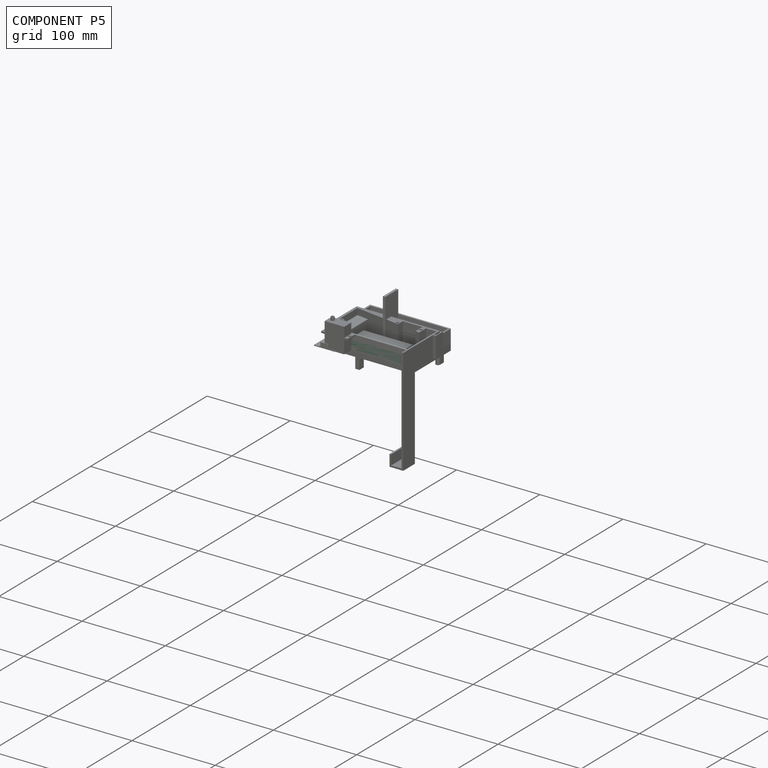
[diagram: component P5 — assembled]
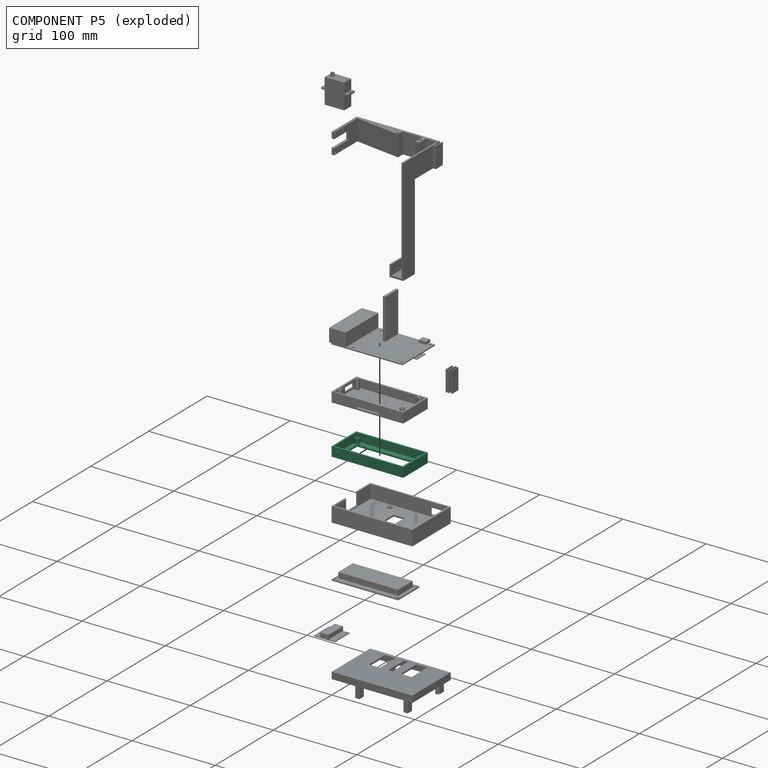
[diagram: component P5 — exploded]
COMPONENT P5 — recipe-attached ("DisplayHousingTop", modeled in this document).
Held by: resting contact with P0 (derived edge); resting contact with P1 (derived edge); resting contact with P2 (derived edge); resting contact with P3 (derived edge); resting contact with P4 (derived edge); resting contact with P6 (derived edge); resting contact with P7 (derived edge); resting contact with P8 (derived edge); resting contact with P9 (derived edge).
Construction recipe (the document's own serialized feature program — sketch geometry with constraints, then the solid features built on it; lengths are millimeters unless a unit is written):

FEATURE [PartDesign::CoordinateSystem] LCS_0004
  AttacherType = Attacher::AttachEngine3D
  MapMode = 2
  Support = -> [X_Axis008]
FEATURE [PartDesign::AdditiveBox] Box010  label="DHT_Base"
  AttacherType = Attacher::AttachEngine3D
  Height = 11.5
  Length = 86
  Width = 42.2
  expr: Width = <<DisplayProps>>.BoardY + 6mm
  expr: Length = <<DisplayProps>>.BoardX + 6mm
FEATURE [PartDesign::SubtractiveBox] Box011  label="DHT_BaseCutout"
  AttacherType = Attacher::AttachEngine3D
  AttachmentOffset = pos=(2,2,2) rot=(0,0,1;0rad)
  BaseFeature = -> Box010
  Height = 9.5
  Length = 82
  MapMode = 5
  Placement = pos=(2,2,2) rot=(0,0,1;0rad)
  Support = -> [XY_Plane008]
  Width = 38.2
  expr: Height = <<DHT_Base>>.Height - 2mm
  expr: Width = <<DHT_Base>>.Width - 4mm
  expr: Length = <<DHT_Base>>.Length - 4mm
FEATURE [Sketcher::SketchObject] Sketch022  label="DHT_HoleSpacersSketch"
  AttachmentOffset = pos=(0,0,2) rot=(0,0,1;0rad)
  FullyConstrained = true
  MapMode = 5
  Placement = pos=(0,0,2) rot=(0,0,1;0rad)
  Support = -> [XY_Plane008]
  expr: Constraints[39] = <<DisplayProps>>.HoleRadius + 1.2mm
  expr: Constraints[20] = <<DisplayProps>>.HoleDistanceY
  expr: Constraints[19] = <<DisplayProps>>.HoleDistanceX
  expr: Constraints[18] = <<DHT_Base>>.Width
  expr: Constraints[17] = <<DHT_Base>>.Length
  sketch-geometry (16):
    g0: LineSegment StartX=0 StartY=0 StartZ=0 EndX=86 EndY=0 EndZ=0
    g1: LineSegment StartX=86 StartY=0 StartZ=0 EndX=86 EndY=42.2 EndZ=0
    g2: LineSegment StartX=86 StartY=42.2 StartZ=0 EndX=0 EndY=42.2 EndZ=0
    g3: LineSegment StartX=0 StartY=42.2 StartZ=0 EndX=0 EndY=0 EndZ=0
    g4: LineSegment StartX=5.25 StartY=36.35 StartZ=0 EndX=80.75 EndY=36.35 EndZ=0
    g5: LineSegment StartX=80.75 StartY=36.35 StartZ=0 EndX=80.75 EndY=5.85 EndZ=0
    g6: LineSegment StartX=80.75 StartY=5.85 StartZ=0 EndX=5.25 EndY=5.85 EndZ=0
    g7: LineSegment StartX=5.25 StartY=5.85 StartZ=0 EndX=5.25 EndY=36.35 EndZ=0
    g8: LineSegment StartX=80.75 StartY=36.35 StartZ=0 EndX=80.75 EndY=42.2 EndZ=0
    g9: LineSegment StartX=80.75 StartY=36.35 StartZ=0 EndX=86 EndY=36.35 EndZ=0
    g10: LineSegment StartX=5.25 StartY=5.85 StartZ=0 EndX=5.25 EndY=0 EndZ=0
    g11: LineSegment StartX=5.25 StartY=5.85 StartZ=0 EndX=0 EndY=5.85 EndZ=0
    g12: Circle CenterX=5.25 CenterY=36.35 CenterZ=0 NormalX=0 NormalY=0 NormalZ=1 AngleXU=0 Radius=2.7
    g13: Circle CenterX=80.75 CenterY=36.35 CenterZ=0 NormalX=0 NormalY=0 NormalZ=1 AngleXU=0 Radius=2.7
    g14: Circle CenterX=80.75 CenterY=5.85 CenterZ=0 NormalX=0 NormalY=0 NormalZ=1 AngleXU=0 Radius=2.7
    g15: Circle CenterX=5.25 CenterY=5.85 CenterZ=0 NormalX=0 NormalY=0 NormalZ=1 AngleXU=0 Radius=2.7
  constraints (43):
    c: Coincident(g0,g1)
    c: Coincident(g1,g2)
    c: Coincident(g2,g3)
    c: Coincident(g3,g0)
    c: Horizontal(g0)
    c: Horizontal(g2)
    c: Vertical(g1)
    c: Vertical(g3)
    c: Coincident(g0,g-1)
    c: Coincident(g4,g5)
    c: Coincident(g5,g6)
    c: Coincident(g6,g7)
    c: Coincident(g7,g4)
    c: Horizontal(g4)
    c: Horizontal(g6)
    c: Vertical(g5)
    c: Vertical(g7)
    c: Distance(g2) = 86
    c: Distance(g3) = 42.2
    c: Distance(g4) = 75.5
    c: Distance(g5) = 30.5
    c: Coincident(g8,g4)
    c: PointOnObject(g8,g2)
    c: Vertical(g8)
    c: Coincident(g9,g4)
    c: PointOnObject(g9,g1)
    c: Horizontal(g9)
    c: Coincident(g10,g6)
    c: PointOnObject(g10,g0)
    c: Vertical(g10)
    c: Coincident(g11,g6)
    c: PointOnObject(g11,g3)
    c: Horizontal(g11)
    c: Equal(g11,g9)
    c: Equal(g10,g8)
    c: Coincident(g12,g4)
    c: Coincident(g13,g4)
    c: Coincident(g14,g5)
    c: Coincident(g15,g6)
    c: Radius(g12) = 2.7
    c: Equal(g12,g13)
    c: Equal(g12,g14)
    c: Equal(g12,g15)
FEATURE [PartDesign::Pad] Pad017  label="DHT_HoleSpacers"
  BaseFeature = -> Box011
  Direction = (1,1,1)
  Length = 6
  Length2 = 100
  Placement = pos=(2,2,2) rot=(0,0,1;0rad)
  Profile = -> Sketch022
  Type = 0
FEATURE [Sketcher::SketchObject] Sketch023  label="DHT_DisplayCutoutSketch"
  FullyConstrained = true
  MapMode = 5
  Support = -> [XY_Plane008]
  expr: Constraints[20] = <<DisplayProps>>.DisplayY
  expr: Constraints[19] = <<DisplayProps>>.DisplayX
  expr: Constraints[18] = <<DHT_Base>>.Width
  expr: Constraints[17] = <<DHT_Base>>.Length
  sketch-geometry (12):
    g0: LineSegment StartX=0 StartY=0 StartZ=0 EndX=86 EndY=0 EndZ=0
    g1: LineSegment StartX=86 StartY=0 StartZ=0 EndX=86 EndY=42.2 EndZ=0
    g2: LineSegment StartX=86 StartY=42.2 StartZ=0 EndX=0 EndY=42.2 EndZ=0
    g3: LineSegment StartX=0 StartY=42.2 StartZ=0 EndX=0 EndY=0 EndZ=0
    g4: LineSegment StartX=7 StartY=33.6 StartZ=0 EndX=79 EndY=33.6 EndZ=0
    g5: LineSegment StartX=79 StartY=33.6 StartZ=0 EndX=79 EndY=8.6 EndZ=0
    g6: LineSegment StartX=79 StartY=8.6 StartZ=0 EndX=7 EndY=8.6 EndZ=0
    g7: LineSegment StartX=7 StartY=8.6 StartZ=0 EndX=7 EndY=33.6 EndZ=0
    g8: LineSegment StartX=79 StartY=33.6 StartZ=0 EndX=86 EndY=33.6 EndZ=0
    g9: LineSegment StartX=79 StartY=33.6 StartZ=0 EndX=79 EndY=42.2 EndZ=0
    g10: LineSegment StartX=7 StartY=8.6 StartZ=0 EndX=0 EndY=8.6 EndZ=0
    g11: LineSegment StartX=7 StartY=8.6 StartZ=0 EndX=7 EndY=0 EndZ=0
  constraints (35):
    c: Coincident(g0,g1)
    c: Coincident(g1,g2)
    c: Coincident(g2,g3)
    c: Coincident(g3,g0)
    c: Horizontal(g0)
    c: Horizontal(g2)
    c: Vertical(g1)
    c: Vertical(g3)
    c: Coincident(g0,g-1)
    c: Coincident(g4,g5)
    c: Coincident(g5,g6)
    c: Coincident(g6,g7)
    c: Coincident(g7,g4)
    c: Horizontal(g4)
    c: Horizontal(g6)
    c: Vertical(g5)
    c: Vertical(g7)
    c: Distance(g2) = 86
    c: Distance(g3) = 42.2
    c: Distance(g4) = 72
    c: Distance(g5) = 25
    c: Coincident(g8,g4)
    c: PointOnObject(g8,g1)
    c: Horizontal(g8)
    c: Coincident(g9,g4)
    c: PointOnObject(g9,g2)
    c: Vertical(g9)
    c: Coincident(g10,g6)
    c: PointOnObject(g10,g3)
    c: Horizontal(g10)
    c: Coincident(g11,g6)
    c: PointOnObject(g11,g0)
    c: Vertical(g11)
    c: Equal(g10,g8)
    c: Equal(g11,g9)
FEATURE [PartDesign::Pocket] Pocket005  label="DHT_DisplayCutout"
  BaseFeature = -> Pad017
  Length = 2
  Length2 = 100
  Placement = pos=(2,2,2) rot=(0,0,1;0rad)
  Profile = -> Sketch023
  Reversed = true
  Type = 0
FEATURE [Sketcher::SketchObject] Sketch024  label="DHT_HolesSketch"
  FullyConstrained = true
  MapMode = 5
  Support = -> [XY_Plane008]
  expr: Constraints[39] = <<DisplayProps>>.HoleRadius + 0.2mm
  expr: Constraints[20] = <<DisplayProps>>.HoleDistanceY
  expr: Constraints[19] = <<DisplayProps>>.HoleDistanceX
  expr: Constraints[10] = <<DHT_Base>>.Width
  expr: Constraints[9] = <<DHT_Base>>.Length
  sketch-geometry (16):
    g0: LineSegment StartX=0 StartY=0 StartZ=0 EndX=86 EndY=0 EndZ=0
    g1: LineSegment StartX=86 StartY=0 StartZ=0 EndX=86 EndY=42.2 EndZ=0
    g2: LineSegment StartX=86 StartY=42.2 StartZ=0 EndX=0 EndY=42.2 EndZ=0
    g3: LineSegment StartX=0 StartY=42.2 StartZ=0 EndX=0 EndY=0 EndZ=0
    g4: LineSegment StartX=5.25 StartY=36.35 StartZ=0 EndX=80.75 EndY=36.35 EndZ=0
    g5: LineSegment StartX=80.75 StartY=36.35 StartZ=0 EndX=80.75 EndY=5.85 EndZ=0
    g6: LineSegment StartX=80.75 StartY=5.85 StartZ=0 EndX=5.25 EndY=5.85 EndZ=0
    g7: LineSegment StartX=5.25 StartY=5.85 StartZ=0 EndX=5.25 EndY=36.35 EndZ=0
    g8: LineSegment StartX=80.75 StartY=36.35 StartZ=0 EndX=86 EndY=36.35 EndZ=0
    g9: LineSegment StartX=80.75 StartY=36.35 StartZ=0 EndX=80.75 EndY=42.2 EndZ=0
    g10: LineSegment StartX=5.25 StartY=5.85 StartZ=0 EndX=5.25 EndY=0 EndZ=0
    g11: LineSegment StartX=5.25 StartY=5.85 StartZ=0 EndX=0 EndY=5.85 EndZ=0
    g12: Circle CenterX=5.25 CenterY=36.35 CenterZ=0 NormalX=0 NormalY=0 NormalZ=1 AngleXU=0 Radius=1.7
    g13: Circle CenterX=80.75 CenterY=36.35 CenterZ=0 NormalX=0 NormalY=0 NormalZ=1 AngleXU=0 Radius=1.7
    g14: Circle CenterX=80.75 CenterY=5.85 CenterZ=0 NormalX=0 NormalY=0 NormalZ=1 AngleXU=0 Radius=1.7
    g15: Circle CenterX=5.25 CenterY=5.85 CenterZ=0 NormalX=0 NormalY=0 NormalZ=1 AngleXU=0 Radius=1.7
  constraints (43):
    c: Coincident(g0,g1)
    c: Coincident(g1,g2)
    c: Coincident(g2,g3)
    c: Coincident(g3,g0)
    c: Horizontal(g0)
    c: Horizontal(g2)
    c: Vertical(g1)
    c: Vertical(g3)
    c: Coincident(g0,g-1)
    c: Distance(g2) = 86
    c: Distance(g3) = 42.2
    c: Coincident(g4,g5)
    c: Coincident(g5,g6)
    c: Coincident(g6,g7)
    c: Coincident(g7,g4)
    c: Horizontal(g4)
    c: Horizontal(g6)
    c: Vertical(g5)
    c: Vertical(g7)
    c: Distance(g4) = 75.5
    c: Distance(g7) = 30.5
    c: Coincident(g8,g4)
    c: PointOnObject(g8,g1)
    c: Horizontal(g8)
    c: Coincident(g9,g4)
    c: PointOnObject(g9,g2)
    c: Vertical(g9)
    c: Coincident(g10,g6)
    c: PointOnObject(g10,g0)
    c: Vertical(g10)
    c: Coincident(g11,g6)
    c: PointOnObject(g11,g3)
    c: Horizontal(g11)
    c: Equal(g11,g8)
    c: Equal(g10,g9)
    c: Coincident(g12,g4)
    c: Coincident(g13,g4)
    c: Coincident(g14,g5)
    c: Coincident(g15,g6)
    c: Radius(g12) = 1.7
    c: Equal(g12,g13)
    c: Equal(g12,g14)
    c: Equal(g12,g15)
FEATURE [PartDesign::Pocket] Pocket006  label="DHT_Holes"
  BaseFeature = -> Pocket005
  Length = 20
  Length2 = 100
  Placement = pos=(2,2,2) rot=(0,0,1;0rad)
  Profile = -> Sketch024
  Reversed = true
  Type = 0
FEATURE [PartDesign::CoordinateSystem] DHT_TopRightScrewHole
  AttacherType = Attacher::AttachEngine3D
  MapMode = 11
  Placement = pos=(80.75,5.85,8) rot=(0.707107,-0.707107,0;3.14159rad)
  Support = -> [Pocket006]
FEATURE [PartDesign::Body] DisplayHousingTop
  Group = -> [LCS_0004,Box010,Box011,Sketch022,Pad017,Sketch023,Pocket005,Sketch024,Pocket006,DHT_TopRightScrewHole]
  Origin = -> Origin008
  Tip = -> Pocket006
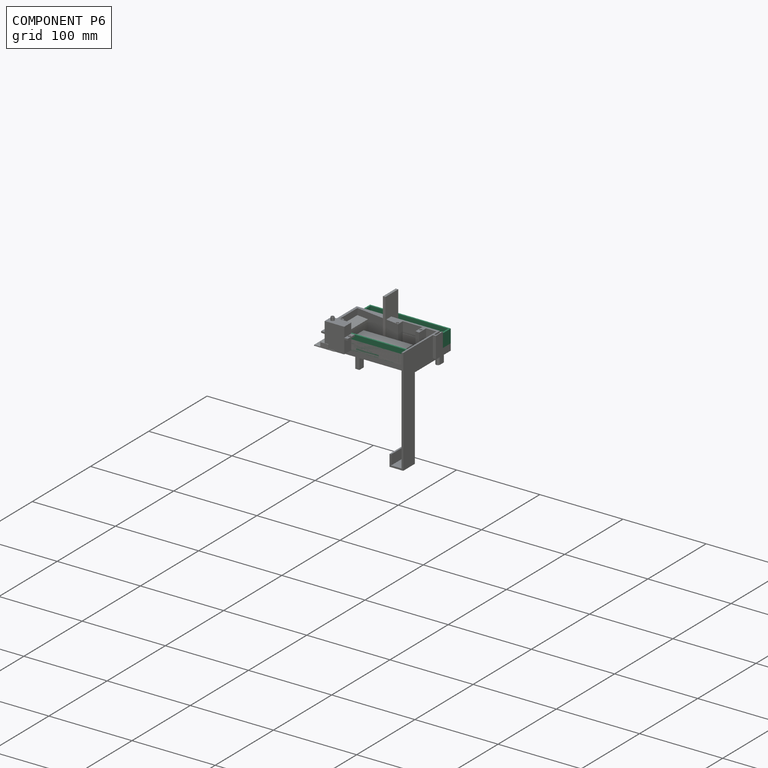
[diagram: component P6 — assembled]
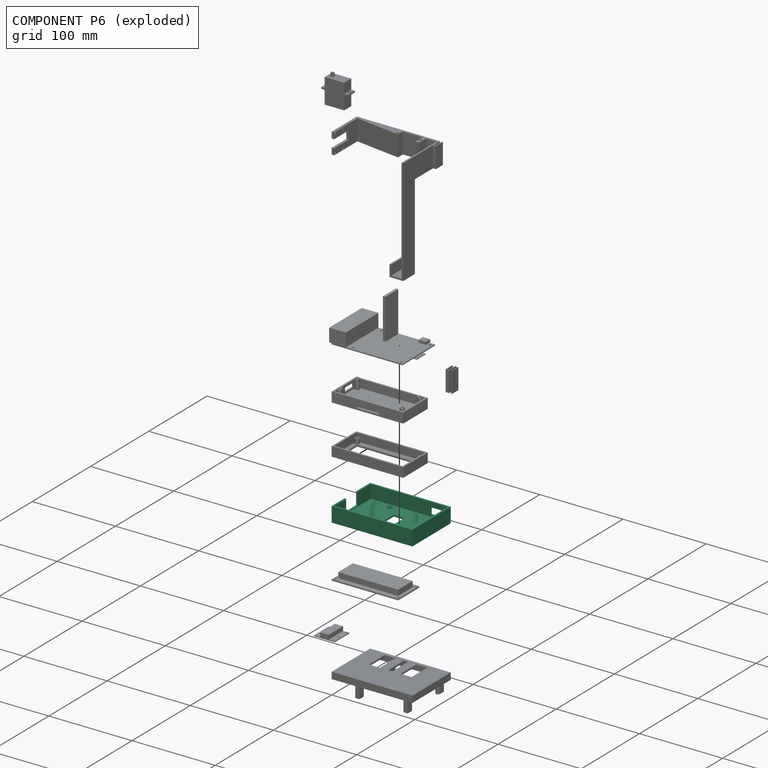
[diagram: component P6 — exploded]
COMPONENT P6 — recipe-attached ("RaspiHousingBottom", modeled in this document).
Held by: resting contact with P1 (derived edge); resting contact with P2 (derived edge); resting contact with P3 (derived edge); resting contact with P4 (derived edge); resting contact with P5 (derived edge); resting contact with P7 (derived edge); resting contact with P8 (derived edge); resting contact with P9 (derived edge).
Construction recipe (the document's own serialized feature program — sketch geometry with constraints, then the solid features built on it; lengths are millimeters unless a unit is written):

FEATURE [Sketcher::SketchObject] Sketch006  label="HB_BaseSketch"
  FullyConstrained = true
  MapMode = 5
  Support = -> [XY_Plane004]
  expr: Constraints[9] = <<RaspiProps>>.Width + <<RaspiProps>>.PortsMargin + <<RaspiProps>>.SdcardMargin + 6mm
  expr: Constraints[22] = <<RaspiProps>>.Width - <<RaspiProps>>.HoleDistanceTop - <<RaspiProps>>.HoleDistanceBottom
  expr: Constraints[10] = <<RaspiProps>>.Height + 10mm
  expr: Constraints[21] = <<RaspiProps>>.Height - <<RaspiProps>>.HoleDistanceSide * 2
  expr: Constraints[30] = <<RaspiProps>>.HoleDistanceSide + 5mm
  expr: Constraints[31] = <<RaspiProps>>.HoleRadius
  expr: Constraints[29] = <<RaspiProps>>.HoleDistanceTop + <<RaspiProps>>.PortsMargin + 3mm
  sketch-geometry (21):
    g0: LineSegment StartX=0 StartY=0 StartZ=0 EndX=97 EndY=0 EndZ=0
    g1: LineSegment StartX=97 StartY=0 StartZ=0 EndX=97 EndY=66 EndZ=0
    g2: LineSegment StartX=97 StartY=66 StartZ=0 EndX=0 EndY=66 EndZ=0
    g3: LineSegment StartX=0 StartY=66 StartZ=0 EndX=0 EndY=0 EndZ=0
    g4: Circle CenterX=87.5 CenterY=57.5 CenterZ=0 NormalX=0 NormalY=0 NormalZ=1 AngleXU=0 Radius=1.5
    g5: Circle CenterX=87.5 CenterY=8.5 CenterZ=0 NormalX=0 NormalY=0 NormalZ=1 AngleXU=0 Radius=1.5
    g6: Circle CenterX=29.5 CenterY=57.5 CenterZ=0 NormalX=0 NormalY=0 NormalZ=1 AngleXU=0 Radius=1.5
    g7: Circle CenterX=29.5 CenterY=8.5 CenterZ=0 NormalX=0 NormalY=0 NormalZ=1 AngleXU=0 Radius=1.5
    g8: LineSegment StartX=29.5 StartY=57.5 StartZ=0 EndX=87.5 EndY=57.5 EndZ=0
    g9: LineSegment StartX=87.5 StartY=57.5 StartZ=0 EndX=87.5 EndY=8.5 EndZ=0
    g10: LineSegment StartX=29.5 StartY=57.5 StartZ=0 EndX=29.5 EndY=8.5 EndZ=0
    g11: LineSegment StartX=87.5 StartY=57.5 StartZ=0 EndX=97 EndY=57.5 EndZ=0
    g12: LineSegment StartX=87.5 StartY=57.5 StartZ=0 EndX=87.5 EndY=66 EndZ=0
    g13: LineSegment StartX=42 StartY=46.5 StartZ=0 EndX=55 EndY=46.5 EndZ=0
    g14: LineSegment StartX=55 StartY=46.5 StartZ=0 EndX=55 EndY=19.5 EndZ=0
    g15: LineSegment StartX=55 StartY=19.5 StartZ=0 EndX=42 EndY=19.5 EndZ=0
    g16: LineSegment StartX=42 StartY=19.5 StartZ=0 EndX=42 EndY=46.5 EndZ=0
    g17: LineSegment StartX=0 StartY=66 StartZ=0 EndX=42 EndY=46.5 EndZ=0
    g18: LineSegment StartX=42 StartY=19.5 StartZ=0 EndX=0 EndY=0 EndZ=0
    g19: LineSegment StartX=55 StartY=19.5 StartZ=0 EndX=97 EndY=0 EndZ=0
    g20: LineSegment StartX=55 StartY=46.5 StartZ=0 EndX=97 EndY=66 EndZ=0
  constraints (55):
    c: Coincident(g0,g1)
    c: Coincident(g1,g2)
    c: Coincident(g2,g3)
    c: Coincident(g3,g0)
    c: Horizontal(g0)
    c: Horizontal(g2)
    c: Vertical(g1)
    c: Vertical(g3)
    c: Coincident(g0,g-1)
    c: Distance(g2) = 97
    c: Distance(g1) = 66
    c: Coincident(g8,g6)
    c: Coincident(g8,g4)
    c: Horizontal(g8)
    c: Coincident(g9,g4)
    c: Coincident(g9,g5)
    c: Vertical(g9)
    c: Coincident(g10,g6)
    c: Coincident(g10,g7)
    c: Vertical(g10)
    c: Equal(g10,g9)
    c: Distance(g9) = 49
    c: Distance(g8) = 58
    c: Coincident(g11,g4)
    c: PointOnObject(g11,g1)
    c: Horizontal(g11)
    c: Coincident(g12,g4)
    c: PointOnObject(g12,g2)
    c: Vertical(g12)
    c: Distance(g11) = 9.5
    c: Distance(g12) = 8.5
    c: Radius(g6) = 1.5
    c: Equal(g6,g4)
    c: Equal(g6,g5)
    c: Equal(g6,g7)
    c: Coincident(g13,g14)
    c: Coincident(g14,g15)
    c: Coincident(g15,g16)
    c: Coincident(g16,g13)
    c: Horizontal(g13)
    c: Horizontal(g15)
    c: Vertical(g14)
    c: Vertical(g16)
    c: Distance(g13) = 13
    c: Distance(g16) = 27
    c: Coincident(g17,g2)
    c: Coincident(g17,g13)
    c: Coincident(g18,g15)
    c: Coincident(g18,g0)
    c: Coincident(g19,g14)
    c: Coincident(g19,g0)
    c: Coincident(g20,g13)
    c: Coincident(g20,g1)
    c: Equal(g17,g20)
    c: Equal(g20,g19)
FEATURE [PartDesign::Pad] Pad004  label="HB_Base"
  Direction = (1,1,1)
  Length = 2
  Length2 = 100
  Profile = -> Sketch006
  Type = 0
FEATURE [Sketcher::SketchObject] Sketch007  label="HB_WallsSketch"
  FullyConstrained = true
  MapMode = 5
  Support = -> [XY_Plane004]
  expr: Constraints[9] = <<RaspiProps>>.Width + <<RaspiProps>>.PortsMargin + <<RaspiProps>>.SdcardMargin + 6mm
  expr: Constraints[10] = <<RaspiProps>>.Height + 10mm
  expr: Constraints[19] = <<RaspiProps>>.Height + 6mm
  expr: Constraints[20] = <<RaspiProps>>.Width + <<RaspiProps>>.PortsMargin + <<RaspiProps>>.SdcardMargin + 2mm
  sketch-geometry (12):
    g0: LineSegment StartX=0 StartY=66 StartZ=0 EndX=97 EndY=66 EndZ=0
    g1: LineSegment StartX=97 StartY=66 StartZ=0 EndX=97 EndY=0 EndZ=0
    g2: LineSegment StartX=97 StartY=0 StartZ=0 EndX=0 EndY=0 EndZ=0
    g3: LineSegment StartX=0 StartY=0 StartZ=0 EndX=0 EndY=66 EndZ=0
    g4: LineSegment StartX=2 StartY=64 StartZ=0 EndX=95 EndY=64 EndZ=0
    g5: LineSegment StartX=95 StartY=64 StartZ=0 EndX=95 EndY=2 EndZ=0
    g6: LineSegment StartX=95 StartY=2 StartZ=0 EndX=2 EndY=2 EndZ=0
    g7: LineSegment StartX=2 StartY=2 StartZ=0 EndX=2 EndY=64 EndZ=0
    g8: LineSegment StartX=95 StartY=64 StartZ=0 EndX=97 EndY=64 EndZ=0
    g9: LineSegment StartX=95 StartY=64 StartZ=0 EndX=95 EndY=66 EndZ=0
    g10: LineSegment StartX=2 StartY=2 StartZ=0 EndX=2 EndY=0 EndZ=0
    g11: LineSegment StartX=2 StartY=2 StartZ=0 EndX=0 EndY=2 EndZ=0
  constraints (35):
    c: Coincident(g0,g1)
    c: Coincident(g1,g2)
    c: Coincident(g2,g3)
    c: Coincident(g3,g0)
    c: Horizontal(g0)
    c: Horizontal(g2)
    c: Vertical(g1)
    c: Vertical(g3)
    c: Coincident(g2,g-1)
    c: Distance(g0) = 97
    c: Distance(g3) = 66
    c: Coincident(g4,g5)
    c: Coincident(g5,g6)
    c: Coincident(g6,g7)
    c: Coincident(g7,g4)
    c: Horizontal(g4)
    c: Horizontal(g6)
    c: Vertical(g5)
    c: Vertical(g7)
    c: Distance(g5) = 62
    c: Distance(g4) = 93
    c: Coincident(g8,g4)
    c: PointOnObject(g8,g1)
    c: Horizontal(g8)
    c: Coincident(g9,g4)
    c: PointOnObject(g9,g0)
    c: Vertical(g9)
    c: Coincident(g10,g6)
    c: PointOnObject(g10,g2)
    c: Vertical(g10)
    c: Coincident(g11,g6)
    c: PointOnObject(g11,g3)
    c: Horizontal(g11)
    c: Equal(g11,g10)
    c: Equal(g10,g8)
FEATURE [PartDesign::Pad] Pad005  label="HB_Walls"
  BaseFeature = -> Pad004
  Direction = (1,1,1)
  Length = 18
  Length2 = 100
  Profile = -> Sketch007
  Type = 0
FEATURE [Sketcher::SketchObject] Sketch008  label="HB_HoleSpacersSketch"
  FullyConstrained = false
  MapMode = 5
  Support = -> [XY_Plane004]
  expr: Constraints[11] = 3mm + <<RaspiProps>>.PortsMargin
  expr: Constraints[28] = <<RaspiProps>>.HoleDistanceTop
  expr: Constraints[29] = <<RaspiProps>>.HoleDistanceSide
  expr: Constraints[26] = <<RaspiProps>>.Width - <<RaspiProps>>.HoleDistanceBottom - <<RaspiProps>>.HoleDistanceTop
  expr: Constraints[12] = <<RaspiProps>>.HoleRadius
  expr: Constraints[27] = <<RaspiProps>>.Height - <<RaspiProps>>.HoleDistanceSide * 2
  expr: Constraints[9] = <<RaspiProps>>.Height
  expr: Constraints[8] = <<RaspiProps>>.Width
  sketch-geometry (19):
    g0: LineSegment StartX=6 StartY=61 StartZ=0 EndX=91 EndY=61 EndZ=0
    g1: LineSegment StartX=91 StartY=61 StartZ=0 EndX=91 EndY=5 EndZ=0
    g2: LineSegment StartX=91 StartY=5 StartZ=0 EndX=6 EndY=5 EndZ=0
    g3: LineSegment StartX=6 StartY=5 StartZ=0 EndX=6 EndY=61 EndZ=0
    g4: Circle CenterX=87.5 CenterY=57.5 CenterZ=0 NormalX=0 NormalY=0 NormalZ=1 AngleXU=0 Radius=1.5
    g5: Circle CenterX=87.5 CenterY=8.5 CenterZ=0 NormalX=0 NormalY=0 NormalZ=1 AngleXU=0 Radius=1.5
    g6: Circle CenterX=29.5 CenterY=57.5 CenterZ=0 NormalX=0 NormalY=0 NormalZ=1 AngleXU=0 Radius=1.5
    g7: Circle CenterX=29.5 CenterY=8.5 CenterZ=0 NormalX=0 NormalY=0 NormalZ=1 AngleXU=0 Radius=1.5
    g8: LineSegment StartX=29.5 StartY=57.5 StartZ=0 EndX=87.5 EndY=57.5 EndZ=0
    g9: LineSegment StartX=87.5 StartY=57.5 StartZ=0 EndX=87.5 EndY=8.5 EndZ=0
    g10: LineSegment StartX=29.5 StartY=8.5 StartZ=0 EndX=87.5 EndY=8.5 EndZ=0
    g11: Circle CenterX=29.5 CenterY=57.5 CenterZ=0 NormalX=0 NormalY=0 NormalZ=1 AngleXU=0 Radius=2.7
    g12: Circle CenterX=87.5 CenterY=57.5 CenterZ=0 NormalX=0 NormalY=0 NormalZ=1 AngleXU=0 Radius=2.7
    g13: Circle CenterX=87.5 CenterY=8.5 CenterZ=0 NormalX=0 NormalY=0 NormalZ=1 AngleXU=0 Radius=2.7
    g14: Circle CenterX=29.5 CenterY=8.5 CenterZ=0 NormalX=0 NormalY=0 NormalZ=1 AngleXU=0 Radius=2.7
    g15: LineSegment StartX=28.3063 StartY=9.40833 StartZ=0 EndX=27.3513 EndY=10.135 EndZ=0
    g16: LineSegment StartX=86.2416 StartY=9.31631 StartZ=0 EndX=85.2348 EndY=9.96936 EndZ=0
    g17: LineSegment StartX=88.8293 StartY=56.805 StartZ=0 EndX=89.8927 EndY=56.2491 EndZ=0
    g18: LineSegment StartX=28.2356 StartY=56.6929 StartZ=0 EndX=27.2241 EndY=56.0473 EndZ=0
  constraints (50):
    c: Coincident(g0,g1)
    c: Coincident(g1,g2)
    c: Coincident(g2,g3)
    c: Coincident(g3,g0)
    c: Horizontal(g0)
    c: Horizontal(g2)
    c: Vertical(g1)
    c: Vertical(g3)
    c: Distance(g0) = 85
    c: Distance(g1) = 56
    c: DistanceY(g-1,g2) = 5
    c: DistanceX(g-1,g2) = 6
    c: Radius(g6) = 1.5
    c: Equal(g6,g4)
    c: Equal(g6,g5)
    c: Equal(g6,g7)
    c: Coincident(g8,g6)
    c: Coincident(g8,g4)
    c: Horizontal(g8)
    c: Coincident(g9,g4)
    c: Coincident(g9,g5)
    c: Vertical(g9)
    c: Coincident(g10,g7)
    c: Coincident(g10,g5)
    c: Horizontal(g10)
    c: Equal(g10,g8)
    c: Distance(g8) = 58
    c: Distance(g9) = 49
    c: DistanceX(g4,g0) = 3.5
    c: DistanceY(g4,g0) = 3.5
    c: Coincident(g11,g6)
    c: Coincident(g12,g4)
    c: Coincident(g13,g5)
    c: Coincident(g14,g7)
    c: PointOnObject(g15,g7)
    c: PointOnObject(g15,g14)
    c: Perpendicular(g7,g15)
    c: PointOnObject(g16,g5)
    c: PointOnObject(g16,g13)
    c: PointOnObject(g17,g4)
    c: PointOnObject(g17,g12)
    c: PointOnObject(g18,g6)
    c: PointOnObject(g18,g11)
    c: Perpendicular(g6,g18)
    c: Perpendicular(g4,g17)
    c: Perpendicular(g5,g16)
    c: Equal(g18,g17)
    c: Equal(g17,g16)
    c: Equal(g16,g15)
    c: Distance(g18) = 1.2
FEATURE [PartDesign::Pad] Pad006  label="HB_HoleSpacers"
  BaseFeature = -> Pad005
  Direction = (1,1,1)
  Length = 4
  Length2 = 100
  Profile = -> Sketch008
  Type = 0
FEATURE [PartDesign::CoordinateSystem] HB_TopRightScrewHole
  AttacherType = Attacher::AttachEngine3D
  AttachmentOffset = pos=(0,0,4) rot=(0,0,1;0rad)
  MapMode = 11
  Placement = pos=(87.5,57.5,4) rot=(0,0,1;1.5708rad)
  Support = -> [Sketch008]
FEATURE [PartDesign::CoordinateSystem] LCS_Origin001
  AttacherType = Attacher::AttachEngine3D
FEATURE [Sketcher::SketchObject] Sketch012  label="HB_UsbcCutoutSketch"
  AttachmentOffset = pos=(74,4,-66) rot=(0,0,1;0rad)
  FullyConstrained = true
  MapMode = 5
  Placement = pos=(74,66,4) rot=(1,0,0;1.5708rad)
  Support = -> [XZ_Plane004]
  expr: .AttachmentOffset.Base.z = -<<RaspiProps>>.Height - 10mm
  sketch-geometry (4):
    g0: LineSegment StartX=0 StartY=0 StartZ=0 EndX=13 EndY=0 EndZ=0
    g1: LineSegment StartX=13 StartY=0 StartZ=0 EndX=13 EndY=8 EndZ=0
    g2: LineSegment StartX=13 StartY=8 StartZ=0 EndX=0 EndY=8 EndZ=0
    g3: LineSegment StartX=0 StartY=8 StartZ=0 EndX=0 EndY=0 EndZ=0
  constraints (11):
    c: Coincident(g0,g1)
    c: Coincident(g1,g2)
    c: Coincident(g2,g3)
    c: Coincident(g3,g0)
    c: Horizontal(g0)
    c: Horizontal(g2)
    c: Vertical(g1)
    c: Vertical(g3)
    c: Coincident(g0,g-1)
    c: Distance(g2) = 13
    c: Distance(g1) = 8
FEATURE [PartDesign::Pocket] Pocket001  label="HB_UsbcCutout"
  BaseFeature = -> Pad006
  Length = 2
  Length2 = 100
  Profile = -> Sketch012
  Reversed = true
  Type = 0
FEATURE [Sketcher::SketchObject] Sketch026  label="HB_BotUsbCutoutSketch"
  FullyConstrained = true
  MapMode = 5
  Placement = pos=(0,0,0) rot=(0.57735,0.57735,0.57735;2.0944rad)
  Support = -> [YZ_Plane004]
  sketch-geometry (4):
    g0: LineSegment StartX=22 StartY=18 StartZ=0 EndX=42 EndY=18 EndZ=0
    g1: LineSegment StartX=42 StartY=18 StartZ=0 EndX=42 EndY=3 EndZ=0
    g2: LineSegment StartX=42 StartY=3 StartZ=0 EndX=22 EndY=3 EndZ=0
    g3: LineSegment StartX=22 StartY=3 StartZ=0 EndX=22 EndY=18 EndZ=0
  constraints (12):
    c: Coincident(g0,g1)
    c: Coincident(g1,g2)
    c: Coincident(g2,g3)
    c: Coincident(g3,g0)
    c: Horizontal(g0)
    c: Horizontal(g2)
    c: Vertical(g1)
    c: Vertical(g3)
    c: Distance(g0) = 20
    c: Distance(g1) = 15
    c: DistanceX(g-1,g2) = 22
    c: DistanceY(g-1,g2) = 3
FEATURE [PartDesign::Pocket] Pocket007  label="HB_BotUsbCutout"
  BaseFeature = -> Pocket001
  Length = 2
  Length2 = 100
  Profile = -> Sketch026
  Reversed = true
  Type = 0
FEATURE [PartDesign::Body] HousingBottom  label="RaspiHousingBottom"
  Group = -> [Sketch006,Pad004,Sketch007,Pad005,Sketch008,Pad006,HB_TopRightScrewHole,LCS_Origin001,Sketch012,Pocket001,Sketch026,Pocket007]
  Origin = -> Origin004
  Tip = -> Pocket007
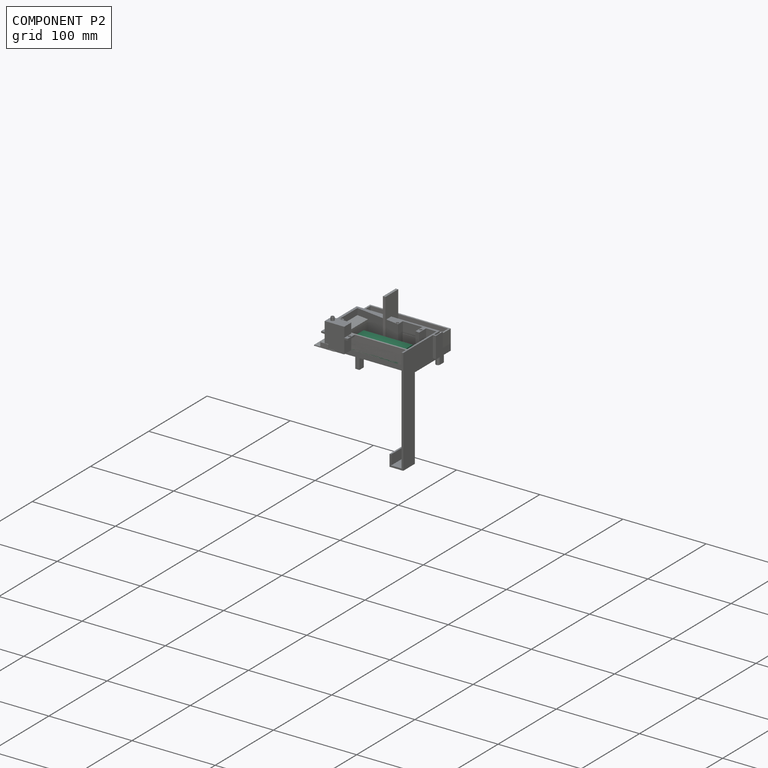
[diagram: component P2 — assembled]
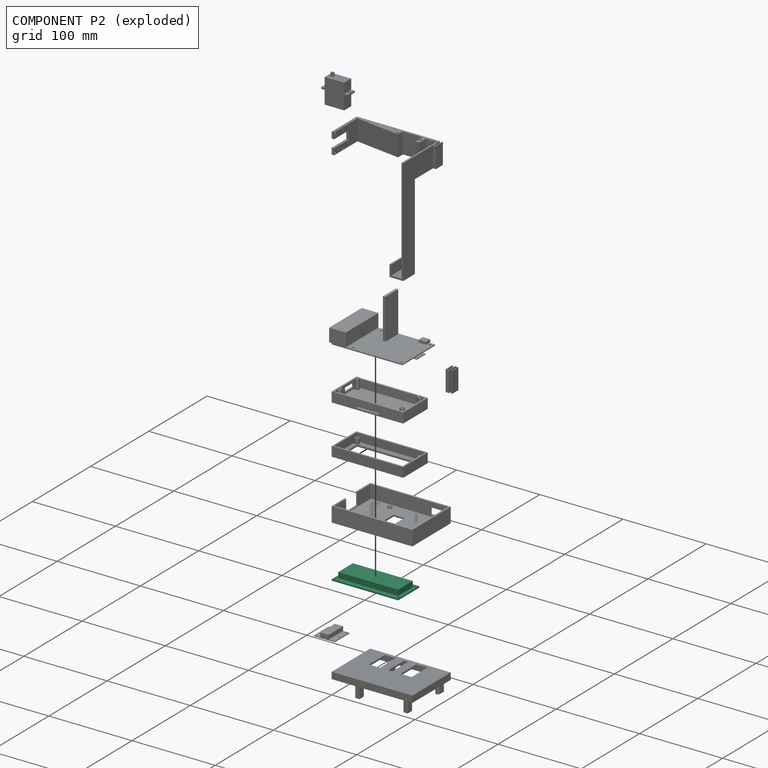
[diagram: component P2 — exploded]
COMPONENT P2 — recipe-attached ("Display", modeled in this document).
Held by: resting contact with P1 (derived edge); resting contact with P3 (derived edge); resting contact with P4 (derived edge); resting contact with P5 (derived edge); resting contact with P6 (derived edge); resting contact with P7 (derived edge); resting contact with P8 (derived edge); resting contact with P9 (derived edge).
Construction recipe (the document's own serialized feature program — sketch geometry with constraints, then the solid features built on it; lengths are millimeters unless a unit is written):

FEATURE [PartDesign::CoordinateSystem] LCS_0002
  AttacherType = Attacher::AttachEngine3D
  MapMode = 2
  Support = -> [X_Axis006]
FEATURE [PartDesign::AdditiveBox] Box004  label="DP_Board"
  AttacherType = Attacher::AttachEngine3D
  Height = 1.6
  Length = 80
  Width = 36.2
  expr: Height = <<DisplayProps>>.BoardZ
  expr: Width = <<DisplayProps>>.BoardY
  expr: Length = <<DisplayProps>>.BoardX
FEATURE [PartDesign::AdditiveBox] Box005  label="DP_DisplayBlock"
  AttacherType = Attacher::AttachEngine3D
  AttachmentOffset = pos=(4,5.6,1.6) rot=(0,0,1;0rad)
  BaseFeature = -> Box004
  Height = 6.7
  Length = 72
  MapMode = 5
  Placement = pos=(4,5.6,1.6) rot=(0,0,1;0rad)
  Support = -> [XY_Plane006]
  Width = 25
  expr: .AttachmentOffset.Base.z = <<DisplayProps>>.BoardZ
  expr: .AttachmentOffset.Base.y = <<DisplayProps>>.DisplayOffsetY
  expr: .AttachmentOffset.Base.x = <<DisplayProps>>.DisplayOffsetX
  expr: Height = <<DisplayProps>>.DisplayZ
  expr: Width = <<DisplayProps>>.DisplayY
  expr: Length = <<DisplayProps>>.DisplayX
FEATURE [Sketcher::SketchObject] Sketch019  label="DP_HolesSketch"
  FullyConstrained = true
  MapMode = 5
  Support = -> [XY_Plane006]
  expr: Constraints[11] = <<DisplayProps>>.HoleOffsetY
  expr: Constraints[10] = <<DisplayProps>>.HoleOffsetX
  expr: Constraints[9] = <<DisplayProps>>.HoleDistanceY
  expr: Constraints[16] = <<DisplayProps>>.HoleRadius
  expr: Constraints[8] = <<DisplayProps>>.HoleDistanceX
  sketch-geometry (8):
    g0: LineSegment StartX=2.25 StartY=33.35 StartZ=0 EndX=77.75 EndY=33.35 EndZ=0
    g1: LineSegment StartX=77.75 StartY=33.35 StartZ=0 EndX=77.75 EndY=2.85 EndZ=0
    g2: LineSegment StartX=77.75 StartY=2.85 StartZ=0 EndX=2.25 EndY=2.85 EndZ=0
    g3: LineSegment StartX=2.25 StartY=2.85 StartZ=0 EndX=2.25 EndY=33.35 EndZ=0
    g4: Circle CenterX=2.25 CenterY=33.35 CenterZ=0 NormalX=0 NormalY=0 NormalZ=1 AngleXU=0 Radius=1.5
    g5: Circle CenterX=77.75 CenterY=33.35 CenterZ=0 NormalX=0 NormalY=0 NormalZ=1 AngleXU=0 Radius=1.5
    g6: Circle CenterX=77.75 CenterY=2.85 CenterZ=0 NormalX=0 NormalY=0 NormalZ=1 AngleXU=0 Radius=1.5
    g7: Circle CenterX=2.25 CenterY=2.85 CenterZ=0 NormalX=0 NormalY=0 NormalZ=1 AngleXU=0 Radius=1.5
  constraints (20):
    c: Coincident(g0,g1)
    c: Coincident(g1,g2)
    c: Coincident(g2,g3)
    c: Coincident(g3,g0)
    c: Horizontal(g0)
    c: Horizontal(g2)
    c: Vertical(g1)
    c: Vertical(g3)
    c: Distance(g0) = 75.5
    c: Distance(g1) = 30.5
    c: DistanceX(g-1,g2) = 2.25
    c: DistanceY(g-1,g2) = 2.85
    c: Coincident(g4,g0)
    c: Coincident(g5,g0)
    c: Coincident(g6,g1)
    c: Coincident(g7,g2)
    c: Radius(g4) = 1.5
    c: Equal(g4,g5)
    c: Equal(g4,g6)
    c: Equal(g4,g7)
FEATURE [PartDesign::Pocket] Pocket002  label="DP_Holes"
  BaseFeature = -> Box005
  Length = 5
  Length2 = 100
  Placement = pos=(4,5.6,1.6) rot=(0,0,1;0rad)
  Profile = -> Sketch019
  Reversed = true
  Type = 0
FEATURE [PartDesign::CoordinateSystem] DP_TopRightScrewHoleBot
  AttacherType = Attacher::AttachEngine3D
  MapMode = 11
  Placement = pos=(77.75,33.35,0) rot=(0,0,1;1.5708rad)
  Support = -> [Pocket002]
FEATURE [PartDesign::CoordinateSystem] DP_TopRightScrewHoleTop
  AttacherType = Attacher::AttachEngine3D
  MapMode = 11
  Placement = pos=(77.75,33.35,1.6) rot=(0.707107,-0.707107,0;3.14159rad)
  Support = -> [Pocket002]
FEATURE [PartDesign::Body] Display
  Group = -> [LCS_0002,Box004,Box005,Sketch019,Pocket002,DP_TopRightScrewHoleBot,DP_TopRightScrewHoleTop]
  Origin = -> Origin006
  Tip = -> Pocket002
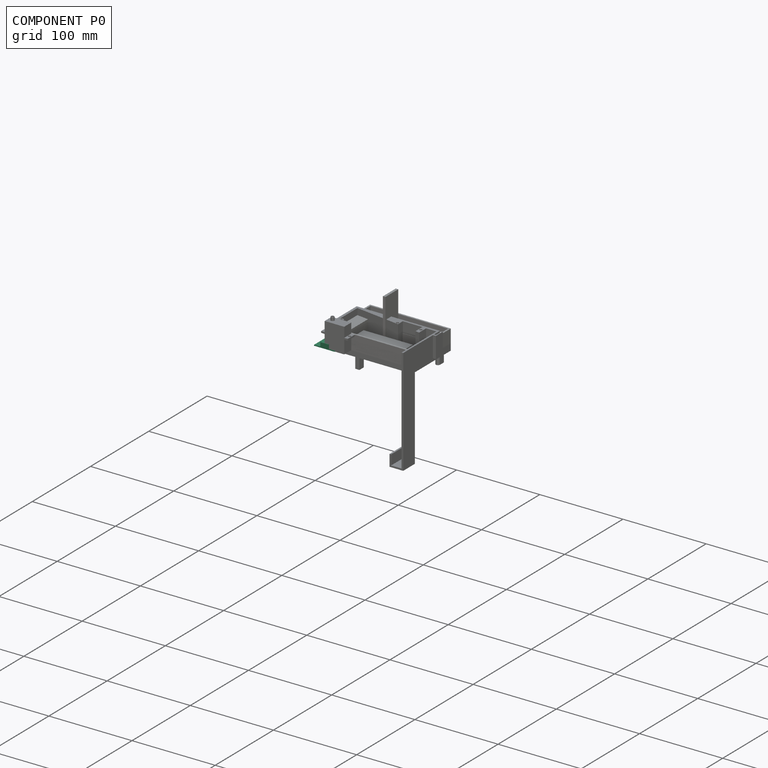
[diagram: component P0 — assembled]
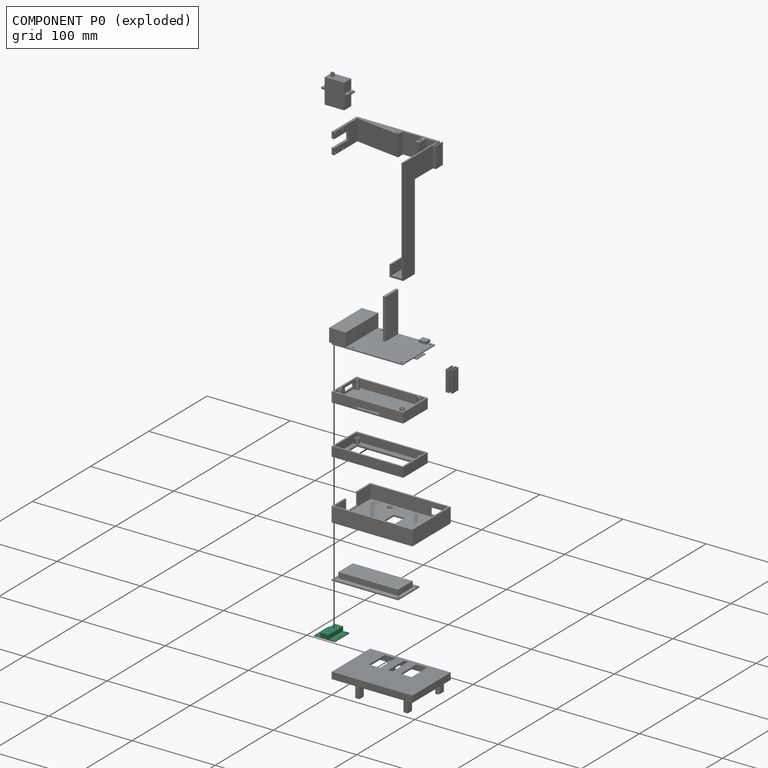
[diagram: component P0 — exploded]
COMPONENT P0 — recipe-attached ("Camera", modeled in this document).
Held by: resting contact with P1 (derived edge); resting contact with P3 (derived edge); resting contact with P4 (derived edge); resting contact with P5 (derived edge); resting contact with P9 (derived edge).
Construction recipe (the document's own serialized feature program — sketch geometry with constraints, then the solid features built on it; lengths are millimeters unless a unit is written):

FEATURE [Sketcher::SketchObject] Sketch  label="CameraBoardSketch"
  FullyConstrained = true
  MapMode = 5
  Support = -> [XY_Plane]
  expr: Constraints[48] = <<CameraProps>>.HoleDistanceBottom
  expr: Constraints[46] = <<CameraProps>>.HoleDistanceTop
  expr: Constraints[47] = <<CameraProps>>.HoleDistanceSide
  expr: Constraints[12] = <<CameraProps>>.BoardSize
  sketch-geometry (17):
    g0: LineSegment StartX=12.5 StartY=12.5 StartZ=0 EndX=-12.5 EndY=12.5 EndZ=0
    g1: LineSegment StartX=-12.5 StartY=12.5 StartZ=0 EndX=-12.5 EndY=-12.5 EndZ=0
    g2: LineSegment StartX=-12.5 StartY=-12.5 StartZ=0 EndX=12.5 EndY=-12.5 EndZ=0
    g3: LineSegment StartX=12.5 StartY=-12.5 StartZ=0 EndX=12.5 EndY=12.5 EndZ=0
    g4: Circle CenterX=0 CenterY=0 CenterZ=0 NormalX=0 NormalY=0 NormalZ=1 AngleXU=0 Radius=17.6777
    g5: Circle CenterX=-10.5 CenterY=10.5 CenterZ=0 NormalX=0 NormalY=0 NormalZ=1 AngleXU=0 Radius=1.1
    g6: Circle CenterX=10.5 CenterY=10.5 CenterZ=0 NormalX=0 NormalY=0 NormalZ=1 AngleXU=0 Radius=1.1
    g7: Circle CenterX=-10.5 CenterY=-2 CenterZ=0 NormalX=0 NormalY=0 NormalZ=1 AngleXU=0 Radius=1.1
    g8: Circle CenterX=10.5 CenterY=-2 CenterZ=0 NormalX=0 NormalY=0 NormalZ=1 AngleXU=0 Radius=1.1
    g9: LineSegment StartX=-10.5 StartY=10.5 StartZ=0 EndX=-10.5 EndY=12.5 EndZ=0
    g10: LineSegment StartX=-10.5 StartY=10.5 StartZ=0 EndX=-12.5 EndY=10.5 EndZ=0
    g11: LineSegment StartX=10.5 StartY=10.5 StartZ=0 EndX=12.5 EndY=10.5 EndZ=0
    g12: LineSegment StartX=10.5 StartY=10.5 StartZ=0 EndX=10.5 EndY=12.5 EndZ=0
    g13: LineSegment StartX=-10.5 StartY=-2 StartZ=0 EndX=-12.5 EndY=-2 EndZ=0
    g14: LineSegment StartX=-10.5 StartY=-2 StartZ=0 EndX=-10.5 EndY=-12.5 EndZ=0
    g15: LineSegment StartX=10.5 StartY=-2 StartZ=0 EndX=10.5 EndY=-12.5 EndZ=0
    g16: LineSegment StartX=10.5 StartY=-2 StartZ=0 EndX=12.5 EndY=-2 EndZ=0
  constraints (50):
    c: Coincident(g0,g1)
    c: Coincident(g1,g2)
    c: Coincident(g2,g3)
    c: Coincident(g3,g0)
    c: Equal(g0,g1)
    c: Equal(g0,g2)
    c: Equal(g0,g3)
    c: PointOnObject(g0,g4)
    c: PointOnObject(g1,g4)
    c: PointOnObject(g2,g4)
    c: PointOnObject(g3,g4)
    c: Coincident(g4,g-1)
    c: Distance(g0) = 25
    c: Horizontal(g0)
    c: Radius(g5) = 1.1  'HoleRadius'
    c: Equal(g5,g6)
    c: Equal(g5,g8)
    c: Equal(g5,g7)
    c: Coincident(g9,g5)
    c: PointOnObject(g9,g0)
    c: Vertical(g9)
    c: Coincident(g10,g5)
    c: PointOnObject(g10,g1)
    c: Horizontal(g10)
    c: Coincident(g11,g6)
    c: PointOnObject(g11,g3)
    c: Horizontal(g11)
    c: Coincident(g12,g6)
    c: PointOnObject(g12,g0)
    c: Vertical(g12)
    c: Coincident(g13,g7)
    c: PointOnObject(g13,g1)
    c: Horizontal(g13)
    c: Coincident(g14,g7)
    c: PointOnObject(g14,g2)
    c: Vertical(g14)
    c: Coincident(g15,g8)
    c: PointOnObject(g15,g2)
    c: Vertical(g15)
    c: PointOnObject(g16,g3)
    c: Horizontal(g16)
    c: Equal(g10,g13)
    c: Equal(g13,g16)
    c: Equal(g16,g11)
    c: Equal(g9,g12)
    c: Equal(g14,g15)
    c: Distance(g9) = 2
    c: Distance(g10) = 2
    c: Distance(g14) = 10.5
    c: Coincident(g16,g8)
FEATURE [PartDesign::Pad] Pad  label="CameraBoard"
  Direction = (1,1,1)
  Length = 1
  Length2 = 100
  Profile = -> Sketch
  Type = 0
FEATURE [Sketcher::SketchObject] Sketch001  label="LensBumpSketch"
  FullyConstrained = true
  MapMode = 5
  Support = -> [XY_Plane]
  expr: Constraints[6] = <<CameraProps>>.LensBumpWidth
  expr: Constraints[7] = <<CameraProps>>.BoardSize
  sketch-geometry (4):
    g0: LineSegment StartX=-5 StartY=12.5 StartZ=0 EndX=5 EndY=12.5 EndZ=0
    g1: LineSegment StartX=5 StartY=12.5 StartZ=0 EndX=5 EndY=-12.5 EndZ=0
    g2: LineSegment StartX=5 StartY=-12.5 StartZ=0 EndX=-5 EndY=-12.5 EndZ=0
    g3: LineSegment StartX=-5 StartY=-12.5 StartZ=0 EndX=-5 EndY=12.5 EndZ=0
  constraints (10):
    c: Coincident(g0,g1)
    c: Coincident(g1,g2)
    c: Coincident(g2,g3)
    c: Coincident(g3,g0)
    c: Horizontal(g2)
    c: Vertical(g1)
    c: Distance(g2) = 10
    c: Distance(g1) = 25
    c: Symmetric(g0,g0,g-2)
    c: Symmetric(g0,g2,g-1)
FEATURE [PartDesign::Pad] Pad001  label="LensBump"
  BaseFeature = -> Pad
  Direction = (1,1,1)
  Length = 6
  Length2 = 100
  Profile = -> Sketch001
  Type = 0
FEATURE [PartDesign::Body] Body  label="Camera"
  Group = -> [Sketch,Pad,Sketch001,Pad001]
  Origin = -> Origin
  Tip = -> Pad001
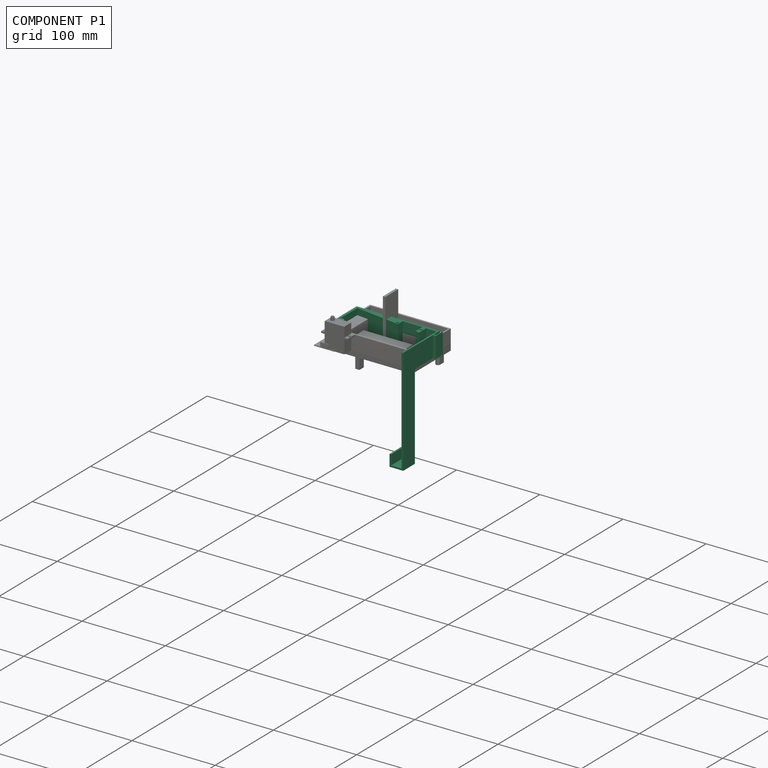
[diagram: component P1 — assembled]
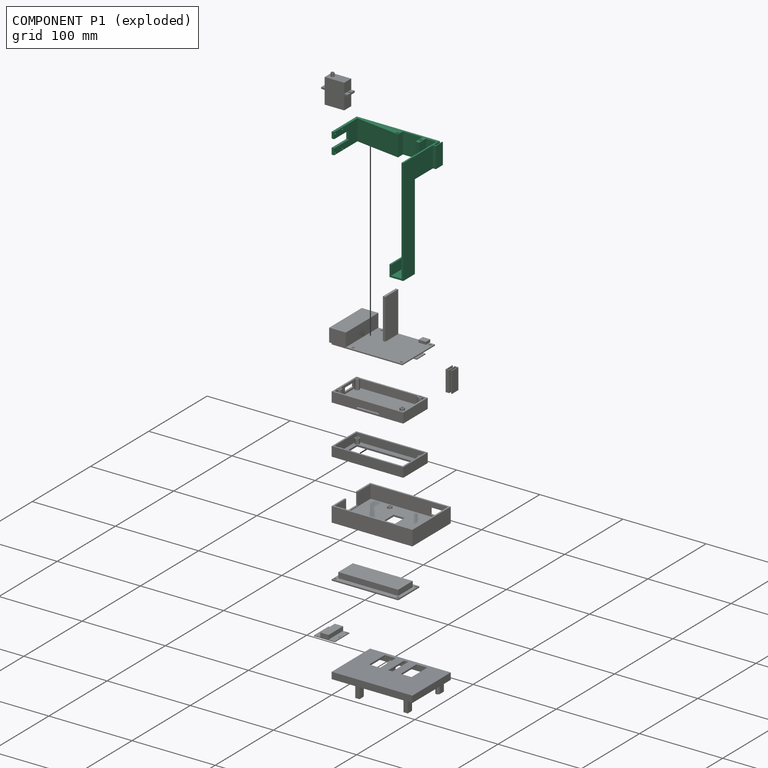
[diagram: component P1 — exploded]
COMPONENT P1 — recipe-attached ("CameraArm", modeled in this document).
Held by: resting contact with P0 (derived edge); resting contact with P2 (derived edge); resting contact with P3 (derived edge); resting contact with P4 (derived edge); resting contact with P5 (derived edge); resting contact with P6 (derived edge); resting contact with P7 (derived edge); resting contact with P8 (derived edge); resting contact with P9 (derived edge).
Construction recipe (the document's own serialized feature program — sketch geometry with constraints, then the solid features built on it; lengths are millimeters unless a unit is written):

FEATURE [PartDesign::CoordinateSystem] LCS_0
  AttacherType = Attacher::AttachEngine3D
  MapMode = 2
  Support = -> [X_Axis002]
FEATURE [Sketcher::SketchObject] Sketch002  label="CA_BaseSketch"
  FullyConstrained = true
  MapMode = 5
  Support = -> [XY_Plane002]
  expr: Constraints[24] = <<CameraProps>>.BoardSize + 3mm
  sketch-geometry (21):
    g0: LineSegment StartX=100 StartY=33 StartZ=0 EndX=100 EndY=43 EndZ=0
    g1: LineSegment StartX=98 StartY=43 StartZ=0 EndX=0 EndY=43 EndZ=0
    g2: LineSegment StartX=0 StartY=43 StartZ=0 EndX=0 EndY=0 EndZ=0
    g3: LineSegment StartX=0 StartY=0 StartZ=0 EndX=3 EndY=0 EndZ=0
    g4: LineSegment StartX=3 StartY=0 StartZ=0 EndX=3 EndY=40 EndZ=0
    g5: LineSegment StartX=98 StartY=-20 StartZ=0 EndX=98 EndY=40 EndZ=0
    g6: LineSegment StartX=98 StartY=40 StartZ=0 EndX=85.5 EndY=40 EndZ=0
    g7: LineSegment StartX=85.5 StartY=40 StartZ=0 EndX=85.5 EndY=28 EndZ=0
    g8: LineSegment StartX=85.5 StartY=28 StartZ=0 EndX=3 EndY=40 EndZ=0
    g9: LineSegment StartX=98 StartY=40 StartZ=0 EndX=98 EndY=43 EndZ=0
    g10: LineSegment StartX=3 StartY=40 StartZ=0 EndX=3 EndY=43 EndZ=0
    g11: LineSegment StartX=100 StartY=33 StartZ=0 EndX=102.3 EndY=33 EndZ=0
    g12: LineSegment StartX=102.3 StartY=33 StartZ=0 EndX=102.3 EndY=43 EndZ=0
    g13: LineSegment StartX=103.5 StartY=31 StartZ=0 EndX=103.5 EndY=43 EndZ=0
    g14: LineSegment StartX=102.3 StartY=43 StartZ=0 EndX=103.5 EndY=43 EndZ=0
    g15: LineSegment StartX=98 StartY=-20 StartZ=0 EndX=100 EndY=-20 EndZ=0
    g16: LineSegment StartX=100 StartY=-20 StartZ=0 EndX=100 EndY=31 EndZ=0
    g17: LineSegment StartX=100 StartY=31 StartZ=0 EndX=103.5 EndY=31 EndZ=0
    g18: LineSegment StartX=100 StartY=33 StartZ=0 EndX=100 EndY=31 EndZ=0
    g19: LineSegment StartX=100 StartY=33 StartZ=0 EndX=98 EndY=33 EndZ=0
    g20: LineSegment StartX=98 StartY=43 StartZ=0 EndX=100 EndY=43 EndZ=0
  constraints (60):
    c: Vertical(g0)
    c: Horizontal(g1)
    c: Coincident(g2,g1)
    c: Vertical(g2)
    c: Coincident(g3,g2)
    c: Horizontal(g3)
    c: Coincident(g4,g3)
    c: Vertical(g4)
    c: Vertical(g5)
    c: Coincident(g6,g5)
    c: Coincident(g7,g6)
    c: Vertical(g7)
    c: Coincident(g8,g7)
    c: Coincident(g8,g4)
    c: Horizontal(g6)
    c: Coincident(g9,g5)
    c: Vertical(g9)
    c: Coincident(g10,g4)
    c: PointOnObject(g10,g1)
    c: Vertical(g10)
    c: Equal(g10,g9)
    c: Distance(g10) = 3
    c: Distance(g6) = 12.5
    c: Coincident(g2,g-1)
    c: DistanceY(g3,g7) = 28
    c: Coincident(g11,g0)
    c: Horizontal(g11)
    c: Coincident(g12,g11)
    c: Vertical(g12)
    c: Distance(g7) = 12
    c: Vertical(g13)
    c: Coincident(g14,g12)
    c: Coincident(g14,g13)
    c: Horizontal(g14)
    c: Equal(g0,g12)
    c: Equal(g3,g10)
    c: Coincident(g15,g5)
    c: Horizontal(g15)
    c: Coincident(g16,g15)
    c: Vertical(g16)
    c: Coincident(g17,g16)
    c: Coincident(g17,g13)
    c: Horizontal(g17)
    c: Coincident(g18,g0)
    c: Coincident(g18,g16)
    c: Vertical(g18)
    c: Coincident(g19,g0)
    c: PointOnObject(g19,g5)
    c: Horizontal(g19)
    c: Equal(g19,g18)
    c: Distance(g5) = 60
    c: Distance(g0) = 10
    c: Coincident(g1,g9)
    c: Coincident(g20,g1)
    c: Coincident(g20,g0)
    c: Horizontal(g20)
    c: DistanceX(g1,g0) = 100  'ArmLength'
    c: Distance(g11) = 2.3
    c: Distance(g14) = 1.2
    c: Distance(g19) = 2
FEATURE [PartDesign::Pad] Pad002  label="CA_Base"
  Direction = (1,1,1)
  Length = 25
  Length2 = 100
  Profile = -> Sketch002
  Type = 0
  expr: Length = <<CameraProps>>.BoardSize
FEATURE [Sketcher::SketchObject] Sketch003  label="CA_CamCutoutSketch"
  FullyConstrained = false
  MapMode = 5
  Placement = pos=(0,0,0) rot=(0.57735,0.57735,0.57735;2.0944rad)
  Support = -> [YZ_Plane002]
  expr: Constraints[43] = <<CameraProps>>.HoleRadius
  expr: Constraints[41] = <<CameraProps>>.HoleDistanceSide
  expr: Constraints[40] = <<CameraProps>>.HoleDistanceBottom
  expr: Constraints[39] = <<CameraProps>>.HoleDistanceTop
  expr: Constraints[57] = <<CameraProps>>.LensBumpWidth
  expr: Constraints[10] = <<CameraProps>>.BoardSize
  sketch-geometry (22):
    g0: LineSegment StartX=0 StartY=0 StartZ=0 EndX=25 EndY=0 EndZ=0
    g1: LineSegment StartX=25 StartY=0 StartZ=0 EndX=25 EndY=25 EndZ=0
    g2: LineSegment StartX=25 StartY=25 StartZ=0 EndX=0 EndY=25 EndZ=0
    g3: LineSegment StartX=0 StartY=25 StartZ=0 EndX=0 EndY=0 EndZ=0
    g4: Circle CenterX=2 CenterY=23 CenterZ=0 NormalX=0 NormalY=0 NormalZ=1 AngleXU=0 Radius=1.1
    g5: Circle CenterX=2 CenterY=2 CenterZ=0 NormalX=0 NormalY=0 NormalZ=1 AngleXU=0 Radius=1.1
    g6: Circle CenterX=14.5 CenterY=23 CenterZ=0 NormalX=0 NormalY=0 NormalZ=1 AngleXU=0 Radius=1.1
    g7: Circle CenterX=14.5 CenterY=2 CenterZ=0 NormalX=0 NormalY=0 NormalZ=1 AngleXU=0 Radius=1.1
    g8: LineSegment StartX=2 StartY=23 StartZ=0 EndX=2 EndY=25 EndZ=0
    g9: LineSegment StartX=2 StartY=23 StartZ=0 EndX=0 EndY=23 EndZ=0
    g10: LineSegment StartX=14.5 StartY=23 StartZ=0 EndX=14.5 EndY=25 EndZ=0
    g11: LineSegment StartX=14.5 StartY=23 StartZ=0 EndX=25 EndY=23 EndZ=0
    g12: LineSegment StartX=14.5 StartY=2 StartZ=0 EndX=25 EndY=2 EndZ=0
    g13: LineSegment StartX=14.5 StartY=2 StartZ=0 EndX=14.5 EndY=0 EndZ=0
    g14: LineSegment StartX=2 StartY=2 StartZ=0 EndX=2 EndY=0 EndZ=0
    g15: LineSegment StartX=2 StartY=2 StartZ=0 EndX=0 EndY=2 EndZ=0
    g16: LineSegment StartX=25 StartY=17.5 StartZ=0 EndX=0 EndY=17.5 EndZ=0
    g17: LineSegment StartX=0 StartY=17.5 StartZ=0 EndX=0 EndY=7.5 EndZ=0
    g18: LineSegment StartX=0 StartY=7.5 StartZ=0 EndX=25 EndY=7.5 EndZ=0
    g19: LineSegment StartX=25 StartY=7.5 StartZ=0 EndX=25 EndY=17.5 EndZ=0
    g20: LineSegment StartX=7.22505 StartY=17.5 StartZ=0 EndX=7.22505 EndY=25 EndZ=0
    g21: LineSegment StartX=7.0351 StartY=7.5 StartZ=0 EndX=7.0351 EndY=0 EndZ=0
  constraints (65):
    c: Coincident(g0,g1)
    c: Coincident(g1,g2)
    c: Coincident(g2,g3)
    c: Coincident(g3,g0)
    c: Horizontal(g0)
    c: Horizontal(g2)
    c: Vertical(g1)
    c: Vertical(g3)
    c: Coincident(g0,g-1)
    c: Equal(g2,g1)
    c: Distance(g2) = 25
    c: Coincident(g8,g4)
    c: PointOnObject(g8,g2)
    c: Vertical(g8)
    c: PointOnObject(g9,g-2)
    c: Horizontal(g9)
    c: Coincident(g9,g4)
    c: Coincident(g10,g6)
    c: PointOnObject(g10,g2)
    c: Vertical(g10)
    c: Coincident(g11,g6)
    c: PointOnObject(g11,g1)
    c: Horizontal(g11)
    c: Coincident(g12,g7)
    c: PointOnObject(g12,g1)
    c: Horizontal(g12)
    c: Coincident(g13,g7)
    c: PointOnObject(g13,g0)
    c: Vertical(g13)
    c: Coincident(g14,g5)
    c: Vertical(g14)
    c: Coincident(g15,g5)
    c: PointOnObject(g15,g3)
    c: Horizontal(g15)
    c: Equal(g10,g8)
    c: Equal(g8,g14)
    c: Equal(g14,g13)
    c: Equal(g9,g15)
    c: Equal(g11,g12)
    c: Distance(g9) = 2
    c: Distance(g11) = 10.5
    c: Distance(g13) = 2
    c: PointOnObject(g14,g0)
    c: Radius(g6) = 1.1
    c: Equal(g6,g7)
    c: Equal(g6,g5)
    c: Equal(g6,g4)
    c: Coincident(g16,g17)
    c: Coincident(g17,g18)
    c: Coincident(g18,g19)
    c: Coincident(g19,g16)
    c: Horizontal(g16)
    c: Horizontal(g18)
    c: Vertical(g17)
    c: Vertical(g19)
    c: PointOnObject(g16,g1)
    c: PointOnObject(g17,g-2)
    c: DistanceY(g17,g16) = 10
    c: PointOnObject(g20,g16)
    c: PointOnObject(g20,g2)
    c: Vertical(g20)
    c: PointOnObject(g21,g18)
    c: PointOnObject(g21,g0)
    c: Vertical(g21)
    c: Equal(g21,g20)
FEATURE [PartDesign::Pocket] Pocket  label="CA_CamCutout"
  BaseFeature = -> Pad002
  Length = 5
  Length2 = 100
  Profile = -> Sketch003
  Reversed = true
  Type = 0
FEATURE [Sketcher::SketchObject] Sketch018  label="CA_SideClampSketch"
  FullyConstrained = true
  MapMode = 5
  Placement = pos=(0,0,0) rot=(1,0,0;1.5708rad)
  Support = -> [XZ_Plane002]
  expr: Constraints[26] = Sketch002.Constraints.ArmLength
  sketch-geometry (9):
    g0: LineSegment StartX=100 StartY=0 StartZ=0 EndX=100 EndY=-103 EndZ=0
    g1: LineSegment StartX=100 StartY=-103 StartZ=0 EndX=83.5 EndY=-103 EndZ=0
    g2: LineSegment StartX=83.5 StartY=-103 StartZ=0 EndX=83.5 EndY=-89 EndZ=0
    g3: LineSegment StartX=85.5 StartY=-89 StartZ=0 EndX=85.5 EndY=-101 EndZ=0
    g4: LineSegment StartX=85.5 StartY=-101 StartZ=0 EndX=98 EndY=-101 EndZ=0
    g5: LineSegment StartX=98 StartY=-101 StartZ=0 EndX=98 EndY=0 EndZ=0
    g6: LineSegment StartX=85.5 StartY=-89 StartZ=0 EndX=83.5 EndY=-89 EndZ=0
    g7: LineSegment StartX=98 StartY=-101 StartZ=0 EndX=98 EndY=-103 EndZ=0
    g8: LineSegment StartX=100 StartY=0 StartZ=0 EndX=98 EndY=0 EndZ=0
  constraints (27):
    c: PointOnObject(g0,g-1)
    c: Vertical(g0)
    c: Horizontal(g1)
    c: Vertical(g2)
    c: Vertical(g3)
    c: Horizontal(g4)
    c: PointOnObject(g5,g-1)
    c: Vertical(g5)
    c: Distance(g4) = 12.5
    c: Coincident(g4,g5)
    c: Coincident(g6,g3)
    c: Coincident(g6,g2)
    c: Horizontal(g6)
    c: Coincident(g7,g4)
    c: PointOnObject(g7,g1)
    c: Vertical(g7)
    c: Coincident(g8,g0)
    c: Coincident(g8,g5)
    c: Equal(g8,g6)
    c: Equal(g6,g7)
    c: Distance(g6) = 2
    c: Coincident(g1,g2)
    c: Coincident(g3,g4)
    c: Distance(g3) = 12
    c: Distance(g0) = 103
    c: Coincident(g1,g0)
    c: DistanceX(g-1,g0) = 100
FEATURE [PartDesign::Pad] Pad015  label="CA_SideClamp"
  BaseFeature = -> Pocket
  Direction = (1,1,1)
  Length = 20
  Length2 = 100
  Profile = -> Sketch018
  Type = 0
FEATURE [PartDesign::CoordinateSystem] CA_ArmTop
  AttacherType = Attacher::AttachEngine3D
  MapMode = 45
  Placement = pos=(100,33,12.5) rot=(0,0,1;0rad)
  Support = -> [Pad015]
FEATURE [Sketcher::SketchObject] Sketch029  label="ArmServoCutoutSketch"
  FullyConstrained = false
  MapMode = 5
  Support = -> [XY_Plane002]
  expr: Constraints[8] = <<ServoProps>>.X
  expr: Constraints[9] = <<ServoProps>>.Y
  expr: Constraints[14] = <<ServoProps>>.FlapHoleRadius
  expr: Constraints[13] = <<ServoProps>>.FlapHoleDistance
  sketch-geometry (11):
    g0: LineSegment StartX=57.2069 StartY=40.4916 StartZ=0 EndX=80.7069 EndY=40.4916 EndZ=0
    g1: LineSegment StartX=80.7069 StartY=40.4916 StartZ=0 EndX=80.7069 EndY=28.4916 EndZ=0
    g2: LineSegment StartX=80.7069 StartY=28.4916 StartZ=0 EndX=57.2069 EndY=28.4916 EndZ=0
    g3: LineSegment StartX=57.2069 StartY=28.4916 StartZ=0 EndX=57.2069 EndY=40.4916 EndZ=0
    g4: Circle CenterX=54.9569 CenterY=34.4916 CenterZ=0 NormalX=0 NormalY=0 NormalZ=1 AngleXU=0 Radius=1.65
    g5: Circle CenterX=82.9569 CenterY=34.4916 CenterZ=0 NormalX=0 NormalY=0 NormalZ=1 AngleXU=0 Radius=1.65
    g6: LineSegment StartX=54.9569 StartY=34.4916 StartZ=0 EndX=82.9569 EndY=34.4916 EndZ=0
    g7: LineSegment StartX=54.9569 StartY=34.4916 StartZ=0 EndX=57.2069 EndY=28.4916 EndZ=0
    g8: LineSegment StartX=82.9569 StartY=34.4916 StartZ=0 EndX=80.7069 EndY=28.4916 EndZ=0
    g9: LineSegment StartX=82.9569 StartY=34.4916 StartZ=0 EndX=80.7069 EndY=40.4916 EndZ=0
    g10: LineSegment StartX=54.9569 StartY=34.4916 StartZ=0 EndX=57.2069 EndY=40.4916 EndZ=0
  constraints (27):
    c: Coincident(g0,g1)
    c: Coincident(g1,g2)
    c: Coincident(g2,g3)
    c: Coincident(g3,g0)
    c: Horizontal(g0)
    c: Horizontal(g2)
    c: Vertical(g1)
    c: Vertical(g3)
    c: Distance(g0) = 23.5
    c: Distance(g3) = 12
    c: Coincident(g6,g4)
    c: Coincident(g6,g5)
    c: Horizontal(g6)
    c: Distance(g6) = 28
    c: Radius(g4) = 1.65
    c: Equal(g4,g5)
    c: Coincident(g7,g4)
    c: Coincident(g7,g2)
    c: Coincident(g8,g5)
    c: Coincident(g8,g1)
    c: Coincident(g9,g5)
    c: PointOnObject(g9,g1)
    c: Coincident(g10,g4)
    c: Coincident(g10,g0)
    c: Equal(g10,g9)
    c: Equal(g9,g8)
    c: Equal(g8,g7)
FEATURE [PartDesign::Pocket] Pocket009  label="CA_ServoCutout"
  BaseFeature = -> Pad015
  Length = 50
  Length2 = 100
  Profile = -> Sketch029
  Reversed = true
  Type = 0
FEATURE [PartDesign::CoordinateSystem] CA_ServoLeftHole
  AttacherType = Attacher::AttachEngine3D
  MapMode = 11
  Placement = pos=(54.9569,34.4916,25) rot=(0.707107,-0.707107,0;3.14159rad)
  Support = -> [Pocket009]
FEATURE [PartDesign::Body] CameraArm
  Group = -> [LCS_0,Sketch002,Pad002,Sketch003,Pocket,Sketch018,Pad015,CA_ArmTop,Sketch029,Pocket009,CA_ServoLeftHole]
  Origin = -> Origin002
  Tip = -> Pocket009
